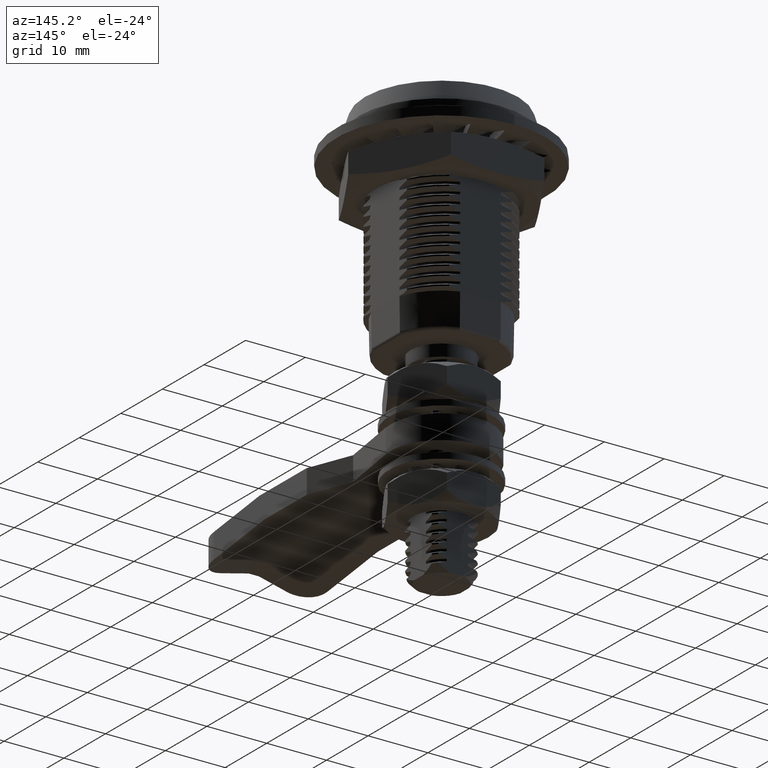
[diagram: clean part render]
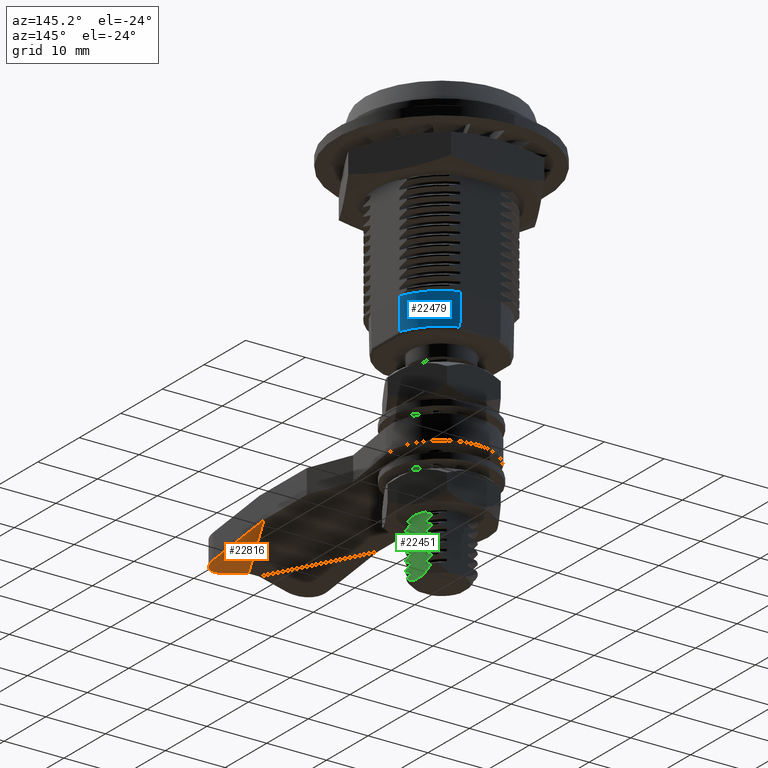
[diagram: same view with three faces highlighted in distinct colors, each labeled with its STEP entity id]
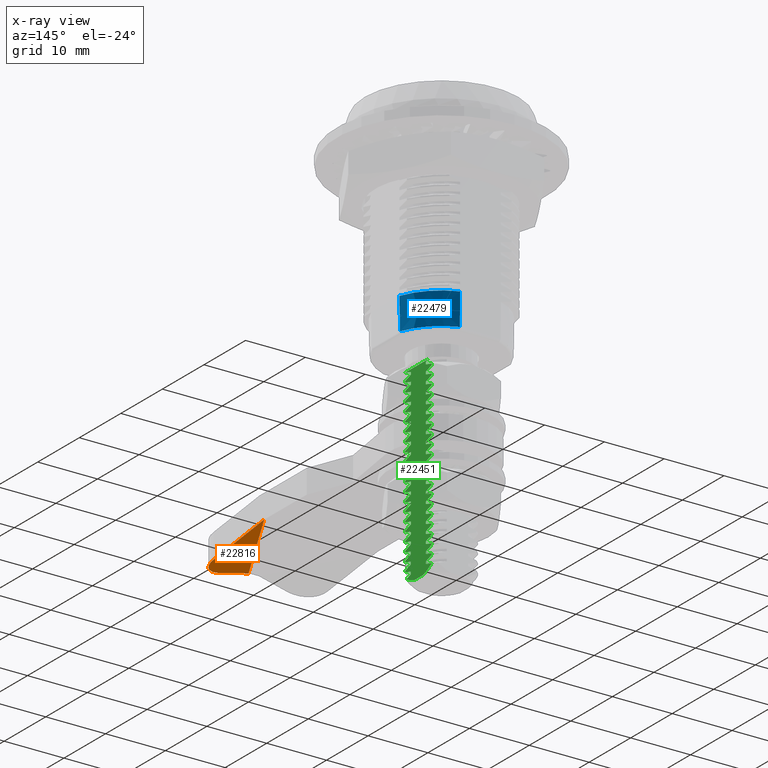
[diagram: x-ray of the same camera — body ghosted, the three highlighted faces saturated]
A machine part, auxiliary view with three faces highlighted in distinct colors.
The next image is the same camera in x-ray (body ghosted, the three faces saturated) — at least one of them is partly hidden behind the body in this view.
Their STEP definitions:

[orange] entity #22816 — the highlighted planar face has unit normal (-0.2367, 0.1262, -0.9633).
#185=ELLIPSE('',#24080,4.15221476986615,4.);
#471=PLANE('',#24079);
#2595=FACE_OUTER_BOUND('',#3884,.T.);
#3884=EDGE_LOOP('',(#20484,#20485,#20486,#20487));
#6738=LINE('',#188781,#8073);
#6747=LINE('',#188798,#8082);
#6757=LINE('',#188820,#8092);
#8073=VECTOR('',#27707,4.75687144678395);
#8082=VECTOR('',#27718,12.2654655866576);
#8092=VECTOR('',#27740,18.316337274843);
#10305=VERTEX_POINT('',#188778);
#10306=VERTEX_POINT('',#188780);
#10312=VERTEX_POINT('',#188795);
#10313=VERTEX_POINT('',#188797);
#13724=EDGE_CURVE('',#10305,#10306,#6738,.T.);
#13733=EDGE_CURVE('',#10312,#10313,#6747,.T.);
#13746=EDGE_CURVE('',#10313,#10305,#6757,.T.);
#13757=EDGE_CURVE('',#10306,#10312,#185,.T.);
#20484=ORIENTED_EDGE('',*,*,#13746,.F.);
#20485=ORIENTED_EDGE('',*,*,#13733,.F.);
#20486=ORIENTED_EDGE('',*,*,#13757,.F.);
#20487=ORIENTED_EDGE('',*,*,#13724,.F.);
#22816=ADVANCED_FACE('',(#2595),#471,.T.);
#24079=AXIS2_PLACEMENT_3D('',#188840,#27758,#27759);
#24080=AXIS2_PLACEMENT_3D('',#188841,#27760,#27761);
#27707=DIRECTION('',(0.97111155659738,-2.02153201802623E-14,-0.238625951319243));
#27718=DIRECTION('',(-1.22961396213774E-15,0.991521600143593,0.129941973390771));
#27740=DIRECTION('',(-0.470588235294113,-0.882352941176473,0.));
#27758=DIRECTION('center_axis',(-0.236716610026833,0.126248858680976,-0.963341306193789));
#27759=DIRECTION('ref_axis',(-0.97111155659738,0.,0.238625951319243));
#27760=DIRECTION('center_axis',(0.236716610026833,-0.126248858680976,0.963341306193789));
#27761=DIRECTION('ref_axis',(0.850007034876875,-0.453337085267661,-0.268278824697077));
#188778=CARTESIAN_POINT('',(169.88054716478,159.85,-52.5));
#188780=CARTESIAN_POINT('',(174.5,159.85,-53.6351129742922));
#188781=CARTESIAN_POINT('',(169.537797227046,159.85,-52.4157779254086));
#188795=CARTESIAN_POINT('',(178.5,163.850000001032,-54.093798802758));
#188797=CARTESIAN_POINT('',(178.5,176.011474066038,-52.5));
#188798=CARTESIAN_POINT('',(178.5,160.638246232821,-54.5147090711335));
#188820=CARTESIAN_POINT('',(172.564439834171,164.882298755108,-52.5));
#188840=CARTESIAN_POINT('Origin',(169.553133559893,160.354995434724,-52.3533652247751));
#188841=CARTESIAN_POINT('Origin',(174.5,163.85,-53.1109005985983));

[blue] entity #22479 — the highlighted conical surface has half-angle 1 deg.
#42=(
BOUNDED_CURVE()
B_SPLINE_CURVE(2,(#143242,#143243,#143244),.UNSPECIFIED.,.F.,.F.)
B_SPLINE_CURVE_WITH_KNOTS((3,3),(0.0997312465467633,0.630685877170918),
 .UNSPECIFIED.)
CURVE()
GEOMETRIC_REPRESENTATION_ITEM()
RATIONAL_B_SPLINE_CURVE((0.999999997693948,0.999999992525226,0.999999997682857))
REPRESENTATION_ITEM('')
);
#43=(
BOUNDED_CURVE()
B_SPLINE_CURVE(2,(#143245,#143246,#143247),.UNSPECIFIED.,.F.,.F.)
B_SPLINE_CURVE_WITH_KNOTS((3,3),(0.10030158032062,0.631256211709047),
 .UNSPECIFIED.)
CURVE()
GEOMETRIC_REPRESENTATION_ITEM()
RATIONAL_B_SPLINE_CURVE((1.,1.,1.))
REPRESENTATION_ITEM('')
);
#271=CONICAL_SURFACE('',#23772,10.,0.0174532925199433);
#832=CIRCLE('',#23761,9.90733583943669);
#836=CIRCLE('',#23773,10.);
#2258=FACE_OUTER_BOUND('',#3541,.T.);
#3541=EDGE_LOOP('',(#18998,#18999,#19000,#19001));
#8774=VERTEX_POINT('',#45349);
#9134=VERTEX_POINT('',#48189);
#10152=VERTEX_POINT('',#143174);
#10153=VERTEX_POINT('',#143191);
#13250=EDGE_CURVE('',#10152,#10153,#832,.T.);
#13264=EDGE_CURVE('',#8774,#10152,#42,.T.);
#13265=EDGE_CURVE('',#10153,#9134,#43,.T.);
#13266=EDGE_CURVE('',#9134,#8774,#836,.T.);
#18998=ORIENTED_EDGE('',*,*,#13264,.T.);
#18999=ORIENTED_EDGE('',*,*,#13250,.T.);
#19000=ORIENTED_EDGE('',*,*,#13265,.T.);
#19001=ORIENTED_EDGE('',*,*,#13266,.T.);
#22479=ADVANCED_FACE('',(#2258),#271,.T.);
#23761=AXIS2_PLACEMENT_3D('',#143208,#27002,#27003);
#23772=AXIS2_PLACEMENT_3D('',#143241,#27028,#27029);
#23773=AXIS2_PLACEMENT_3D('',#143248,#27030,#27031);
#27002=DIRECTION('center_axis',(0.,0.,1.));
#27003=DIRECTION('ref_axis',(-1.,0.,0.));
#27028=DIRECTION('center_axis',(0.,0.,1.));
#27029=DIRECTION('ref_axis',(-1.,0.,0.));
#27030=DIRECTION('center_axis',(0.,0.,-1.));
#27031=DIRECTION('ref_axis',(-1.,0.,0.));
#45349=CARTESIAN_POINT('',(178.4,208.411744421846,-30.7));
#48189=CARTESIAN_POINT('',(172.411744421846,214.4,-30.7));
#143174=CARTESIAN_POINT('',(178.307335839437,208.395409107504,-36.0087262032187));
#143191=CARTESIAN_POINT('',(172.395409107504,214.307335839437,-36.0087262032187));
#143208=CARTESIAN_POINT('Origin',(169.,205.,-36.0087262032187));
#143241=CARTESIAN_POINT('Origin',(169.,205.,-30.7));
#143242=CARTESIAN_POINT('Ctrl Pts',(178.4,208.411744421852,-30.6999999999999));
#143243=CARTESIAN_POINT('Ctrl Pts',(178.353556766301,208.403576770132,-33.3607310766297));
#143244=CARTESIAN_POINT('Ctrl Pts',(178.307335839432,208.395409107498,-36.0087262034832));
#143245=CARTESIAN_POINT('Ctrl Pts',(172.395409107502,214.307335839437,-36.0087262032207));
#143246=CARTESIAN_POINT('Ctrl Pts',(172.403576767006,214.353556748563,-33.3607320928123));
#143247=CARTESIAN_POINT('Ctrl Pts',(172.411744421849,214.4,-30.6999999999997));
#143248=CARTESIAN_POINT('Origin',(169.,205.,-30.7));

[green] entity #22451 — the highlighted planar face has unit normal (1, 0, 0).
#31=(
BOUNDED_CURVE()
B_SPLINE_CURVE(2,(#95852,#95853,#95854),.UNSPECIFIED.,.F.,.F.)
B_SPLINE_CURVE_WITH_KNOTS((3,3),(2.97094401015002,4.19286202785436),
 .UNSPECIFIED.)
CURVE()
GEOMETRIC_REPRESENTATION_ITEM()
RATIONAL_B_SPLINE_CURVE((4.61581920903963,5.04083865314853,5.20382165605166))
REPRESENTATION_ITEM('')
);
#33=(
BOUNDED_CURVE()
B_SPLINE_CURVE(2,(#118405,#118406,#118407),.UNSPECIFIED.,.F.,.F.)
B_SPLINE_CURVE_WITH_KNOTS((3,3),(5.71289387464999,6.79202172162961),
 .UNSPECIFIED.)
CURVE()
GEOMETRIC_REPRESENTATION_ITEM()
RATIONAL_B_SPLINE_CURVE((5.20382165605166,5.05988442420074,4.71157427024962))
REPRESENTATION_ITEM('')
);
#443=PLANE('',#23718);
#2230=FACE_OUTER_BOUND('',#3508,.T.);
#3508=EDGE_LOOP('',(#18531,#18532,#18533,#18534,#18535,#18536,#18537,#18538,
#18539,#18540,#18541,#18542,#18543,#18544,#18545,#18546,#18547,#18548,#18549,
#18550,#18551,#18552,#18553,#18554,#18555,#18556,#18557,#18558,#18559,#18560,
#18561,#18562,#18563,#18564,#18565,#18566,#18567,#18568,#18569,#18570,#18571,
#18572,#18573,#18574,#18575,#18576,#18577,#18578,#18579,#18580,#18581,#18582,
#18583,#18584,#18585,#18586,#18587,#18588,#18589,#18590,#18591,#18592,#18593,
#18594,#18595,#18596,#18597,#18598,#18599,#18600,#18601,#18602,#18603,#18604,
#18605,#18606,#18607,#18608,#18609,#18610,#18611,#18612,#18613,#18614,#18615,
#18616,#18617,#18618,#18619,#18620,#18621,#18622,#18623,#18624,#18625,#18626,
#18627,#18628,#18629,#18630,#18631,#18632,#18633,#18634,#18635,#18636,#18637,
#18638,#18639,#18640,#18641,#18642,#18643,#18644,#18645,#18646,#18647,#18648,
#18649,#18650,#18651,#18652,#18653,#18654,#18655,#18656,#18657,#18658,#18659,
#18660,#18661,#18662,#18663,#18664,#18665,#18666,#18667,#18668,#18669,#18670,
#18671,#18672,#18673,#18674,#18675,#18676,#18677,#18678,#18679,#18680,#18681,
#18682,#18683,#18684,#18685,#18686,#18687,#18688,#18689,#18690,#18691,#18692,
#18693,#18694,#18695,#18696,#18697,#18698,#18699,#18700,#18701,#18702));
#4781=B_SPLINE_CURVE_WITH_KNOTS('',3,(#73874,#73875,#73876,#73877,#73878,
#73879),.UNSPECIFIED.,.F.,.F.,(4,2,4),(9.99999938902014E-7,0.071889007584264,
0.143784780522941),.UNSPECIFIED.);
#4785=B_SPLINE_CURVE_WITH_KNOTS('',3,(#74423,#74424,#74425,#74426,#74427,
#74428),.UNSPECIFIED.,.F.,.F.,(4,2,4),(9.99999931764185E-7,0.0736486809972706,
0.1473208580429),.UNSPECIFIED.);
#4789=B_SPLINE_CURVE_WITH_KNOTS('',3,(#74972,#74973,#74974,#74975,#74976,
#74977),.UNSPECIFIED.,.F.,.F.,(4,2,4),(9.99999943158414E-7,0.0718890075842043,
0.143784780522723),.UNSPECIFIED.);
#4793=B_SPLINE_CURVE_WITH_KNOTS('',3,(#75521,#75522,#75523,#75524,#75525,
#75526),.UNSPECIFIED.,.F.,.F.,(4,2,4),(9.99999931009968E-7,0.0736491810770094,
0.147320858042681),.UNSPECIFIED.);
#4797=B_SPLINE_CURVE_WITH_KNOTS('',3,(#76070,#76071,#76072,#76073,#76074,
#76075),.UNSPECIFIED.,.F.,.F.,(4,2,4),(9.99999943779338E-7,0.0718890075836037,
0.143784780521738),.UNSPECIFIED.);
#4801=B_SPLINE_CURVE_WITH_KNOTS('',3,(#76619,#76620,#76621,#76622,#76623,
#76624),.UNSPECIFIED.,.F.,.F.,(4,2,4),(9.99999927506596E-7,0.0736491807753947,
0.147320858043309),.UNSPECIFIED.);
#4805=B_SPLINE_CURVE_WITH_KNOTS('',3,(#77168,#77169,#77170,#77171,#77172,
#77173),.UNSPECIFIED.,.F.,.F.,(4,2,4),(9.99999943514696E-7,0.0718890078281563,
0.143784780522148),.UNSPECIFIED.);
#4809=B_SPLINE_CURVE_WITH_KNOTS('',3,(#77717,#77718,#77719,#77720,#77721,
#77722),.UNSPECIFIED.,.F.,.F.,(4,2,4),(9.99999923579573E-7,0.0736491810771096,
0.147320858043228),.UNSPECIFIED.);
#4813=B_SPLINE_CURVE_WITH_KNOTS('',3,(#78266,#78267,#78268,#78269,#78270,
#78271),.UNSPECIFIED.,.F.,.F.,(4,2,4),(9.99999947006672E-7,0.0718885075604823,
0.143784780522291),.UNSPECIFIED.);
#4817=B_SPLINE_CURVE_WITH_KNOTS('',3,(#78815,#78816,#78817,#78818,#78819,
#78820),.UNSPECIFIED.,.F.,.F.,(4,2,4),(9.99999930507028E-7,0.073649181076981,
0.147320858042632),.UNSPECIFIED.);
#4821=B_SPLINE_CURVE_WITH_KNOTS('',3,(#79364,#79365,#79366,#79367,#79368,
#79369),.UNSPECIFIED.,.F.,.F.,(4,2,4),(9.99999941248163E-7,0.0718890075842089,
0.143784780523034),.UNSPECIFIED.);
#4825=B_SPLINE_CURVE_WITH_KNOTS('',3,(#79913,#79914,#79915,#79916,#79917,
#79918),.UNSPECIFIED.,.F.,.F.,(4,2,4),(9.99999933948683E-7,0.0736481806214189,
0.147320858042453),.UNSPECIFIED.);
#4829=B_SPLINE_CURVE_WITH_KNOTS('',3,(#80462,#80463,#80464,#80465,#80466,
#80467),.UNSPECIFIED.,.F.,.F.,(4,2,4),(9.99999943158423E-7,0.0718890075841351,
0.143784780522875),.UNSPECIFIED.);
#4833=B_SPLINE_CURVE_WITH_KNOTS('',3,(#81011,#81012,#81013,#81014,#81015,
#81016),.UNSPECIFIED.,.F.,.F.,(4,2,4),(9.99999938110434E-7,0.0736486809973436,
0.147320858042859),.UNSPECIFIED.);
#4837=B_SPLINE_CURVE_WITH_KNOTS('',3,(#81560,#81561,#81562,#81563,#81564,
#81565),.UNSPECIFIED.,.F.,.F.,(4,2,4),(9.99999938086026E-7,0.0718895071615702,
0.143784780525751),.UNSPECIFIED.);
#4841=B_SPLINE_CURVE_WITH_KNOTS('',3,(#82109,#82110,#82111,#82112,#82113,
#82114),.UNSPECIFIED.,.F.,.F.,(4,2,4),(9.99999921542103E-7,0.0736486807018007,
0.147320858044042),.UNSPECIFIED.);
#4845=B_SPLINE_CURVE_WITH_KNOTS('',3,(#82658,#82659,#82660,#82661,#82662,
#82663),.UNSPECIFIED.,.F.,.F.,(4,2,4),(9.99999941674071E-7,0.0718890075841652,
0.143784780522711),.UNSPECIFIED.);
#4849=B_SPLINE_CURVE_WITH_KNOTS('',3,(#83207,#83208,#83209,#83210,#83211,
#83212),.UNSPECIFIED.,.F.,.F.,(4,2,4),(9.99999931009883E-7,0.0736486809973919,
0.147320858042974),.UNSPECIFIED.);
#4853=B_SPLINE_CURVE_WITH_KNOTS('',3,(#83756,#83757,#83758,#83759,#83760,
#83761),.UNSPECIFIED.,.F.,.F.,(4,2,4),(9.99999950402566E-7,0.0718885075607838,
0.143784780523012),.UNSPECIFIED.);
#4857=B_SPLINE_CURVE_WITH_KNOTS('',3,(#84305,#84306,#84307,#84308,#84309,
#84310),.UNSPECIFIED.,.F.,.F.,(4,2,4),(9.99999925703719E-7,0.0736486803992055,
0.147320858042804),.UNSPECIFIED.);
#4861=B_SPLINE_CURVE_WITH_KNOTS('',3,(#84854,#84855,#84856,#84857,#84858,
#84859),.UNSPECIFIED.,.F.,.F.,(4,2,4),(9.99999943828045E-7,0.0718890078283237,
0.14378478052258),.UNSPECIFIED.);
#4865=B_SPLINE_CURVE_WITH_KNOTS('',3,(#85403,#85404,#85405,#85406,#85407,
#85408),.UNSPECIFIED.,.F.,.F.,(4,2,4),(9.99999914501938E-7,0.073648680701181,
0.147320858042685),.UNSPECIFIED.);
#4869=B_SPLINE_CURVE_WITH_KNOTS('',3,(#85952,#85953,#85954,#85955,#85956,
#85957),.UNSPECIFIED.,.F.,.F.,(4,2,4),(9.99999943715294E-7,0.0718895071601716,
0.14378478052279),.UNSPECIFIED.);
#4873=B_SPLINE_CURVE_WITH_KNOTS('',3,(#86501,#86502,#86503,#86504,#86505,
#86506),.UNSPECIFIED.,.F.,.F.,(4,2,4),(9.99999917631836E-7,0.0736491810770228,
0.147320858042897),.UNSPECIFIED.);
#4877=B_SPLINE_CURVE_WITH_KNOTS('',3,(#87050,#87051,#87052,#87053,#87054,
#87055),.UNSPECIFIED.,.F.,.F.,(4,2,4),(9.99999936856744E-7,0.0718895071587926,
0.143784780520263),.UNSPECIFIED.);
#4881=B_SPLINE_CURVE_WITH_KNOTS('',3,(#87599,#87600,#87601,#87602,#87603,
#87604),.UNSPECIFIED.,.F.,.F.,(4,2,4),(9.9999993534467E-7,0.0736486809972104,
0.147320858042548),.UNSPECIFIED.);
#4885=B_SPLINE_CURVE_WITH_KNOTS('',3,(#88148,#88149,#88150,#88151,#88152,
#88153),.UNSPECIFIED.,.F.,.F.,(4,2,4),(9.99999941117187E-7,0.0718895071597936,
0.14378478052232),.UNSPECIFIED.);
#4889=B_SPLINE_CURVE_WITH_KNOTS('',3,(#88697,#88698,#88699,#88700,#88701,
#88702),.UNSPECIFIED.,.F.,.F.,(4,2,4),(9.99999931261318E-7,0.0736491810770693,
0.147320858043087),.UNSPECIFIED.);
#4893=B_SPLINE_CURVE_WITH_KNOTS('',3,(#89246,#89247,#89248,#89249,#89250,
#89251),.UNSPECIFIED.,.F.,.F.,(4,2,4),(9.99999936689746E-7,0.0718895071602765,
0.143784780523087),.UNSPECIFIED.);
#4897=B_SPLINE_CURVE_WITH_KNOTS('',3,(#89795,#89796,#89797,#89798,#89799,
#89800),.UNSPECIFIED.,.F.,.F.,(4,2,4),(9.99999928356839E-7,0.0736486809974734,
0.147320858043411),.UNSPECIFIED.);
#4901=B_SPLINE_CURVE_WITH_KNOTS('',3,(#90344,#90345,#90346,#90347,#90348,
#90349),.UNSPECIFIED.,.F.,.F.,(4,2,4),(9.99999947229634E-7,0.0718890075847245,
0.143784780523931),.UNSPECIFIED.);
#4905=B_SPLINE_CURVE_WITH_KNOTS('',3,(#90893,#90894,#90895,#90896,#90897,
#90898),.UNSPECIFIED.,.F.,.F.,(4,2,4),(9.99999954349238E-7,0.073648180622011,
0.147320858043589),.UNSPECIFIED.);
#4909=B_SPLINE_CURVE_WITH_KNOTS('',3,(#91442,#91443,#91444,#91445,#91446,
#91447),.UNSPECIFIED.,.F.,.F.,(4,2,4),(9.9999994195249E-7,0.0718890075839587,
0.143784780522264),.UNSPECIFIED.);
#4913=B_SPLINE_CURVE_WITH_KNOTS('',3,(#91991,#91992,#91993,#91994,#91995,
#91996),.UNSPECIFIED.,.F.,.F.,(4,2,4),(9.99999899840554E-7,0.0736486803991823,
0.14732085804266),.UNSPECIFIED.);
#4917=B_SPLINE_CURVE_WITH_KNOTS('',3,(#92540,#92541,#92542,#92543,#92544,
#92545),.UNSPECIFIED.,.F.,.F.,(4,2,4),(9.99999945604647E-7,0.0718890078267678,
0.143784780519355),.UNSPECIFIED.);
#4921=B_SPLINE_CURVE_WITH_KNOTS('',3,(#93089,#93090,#93091,#93092,#93093,
#93094),.UNSPECIFIED.,.F.,.F.,(4,2,4),(9.99999906404008E-7,0.0736486807012789,
0.147320858043175),.UNSPECIFIED.);
#4925=B_SPLINE_CURVE_WITH_KNOTS('',3,(#93638,#93639,#93640,#93641,#93642,
#93643),.UNSPECIFIED.,.F.,.F.,(4,2,4),(9.99999948421233E-7,0.0718890071366596,
0.143784780523098),.UNSPECIFIED.);
#4929=B_SPLINE_CURVE_WITH_KNOTS('',3,(#94187,#94188,#94189,#94190,#94191,
#94192),.UNSPECIFIED.,.F.,.F.,(4,2,4),(9.99999931764188E-7,0.0736481806215927,
0.147320858042754),.UNSPECIFIED.);
#4933=B_SPLINE_CURVE_WITH_KNOTS('',3,(#94736,#94737,#94738,#94739,#94740,
#94741),.UNSPECIFIED.,.F.,.F.,(4,2,4),(9.99999944212234E-7,0.0718890075839398,
0.143784780522568),.UNSPECIFIED.);
#4937=B_SPLINE_CURVE_WITH_KNOTS('',3,(#95285,#95286,#95287,#95288,#95289,
#95290),.UNSPECIFIED.,.F.,.F.,(4,2,4),(9.9999990324793E-7,0.0736486807013122,
0.147320858043112),.UNSPECIFIED.);
#4941=B_SPLINE_CURVE_WITH_KNOTS('',3,(#95834,#95835,#95836,#95837,#95838,
#95839),.UNSPECIFIED.,.F.,.F.,(4,2,4),(9.99999943882405E-7,0.0718885075600655,
0.143784780521828),.UNSPECIFIED.);
#4946=B_SPLINE_CURVE_WITH_KNOTS('',3,(#96450,#96451,#96452,#96453,#96454,
#96455),.UNSPECIFIED.,.F.,.F.,(4,2,4),(9.99999929210735E-7,0.0736486810156163,
0.147320858041969),.UNSPECIFIED.);
#4950=B_SPLINE_CURVE_WITH_KNOTS('',3,(#96999,#97000,#97001,#97002,#97003,
#97004),.UNSPECIFIED.,.F.,.F.,(4,2,4),(9.99999955988678E-7,0.071888507587376,
0.143784780522702),.UNSPECIFIED.);
#4954=B_SPLINE_CURVE_WITH_KNOTS('',3,(#97548,#97549,#97550,#97551,#97552,
#97553),.UNSPECIFIED.,.F.,.F.,(4,2,4),(9.99999932267117E-7,0.073648180640418,
0.147320858043204),.UNSPECIFIED.);
#4958=B_SPLINE_CURVE_WITH_KNOTS('',3,(#98097,#98098,#98099,#98100,#98101,
#98102),.UNSPECIFIED.,.F.,.F.,(4,2,4),(9.99999946628025E-7,0.0718885075881263,
0.143784780524437),.UNSPECIFIED.);
#4962=B_SPLINE_CURVE_WITH_KNOTS('',3,(#98646,#98647,#98648,#98649,#98650,
#98651),.UNSPECIFIED.,.F.,.F.,(4,2,4),(9.99999928859695E-7,0.073649181095928,
0.147320858043328),.UNSPECIFIED.);
#4966=B_SPLINE_CURVE_WITH_KNOTS('',3,(#99195,#99196,#99197,#99198,#99199,
#99200),.UNSPECIFIED.,.F.,.F.,(4,2,4),(9.99999944490813E-7,0.0718890078548824,
0.143784780522235),.UNSPECIFIED.);
#4970=B_SPLINE_CURVE_WITH_KNOTS('',3,(#99744,#99745,#99746,#99747,#99748,
#99749),.UNSPECIFIED.,.F.,.F.,(4,2,4),(9.99999925200958E-7,0.0736491807936671,
0.147320858042413),.UNSPECIFIED.);
#4974=B_SPLINE_CURVE_WITH_KNOTS('',3,(#100293,#100294,#100295,#100296,#100297,
#100298),.UNSPECIFIED.,.F.,.F.,(4,2,4),(9.99999943687453E-7,0.0718890076108423,
0.143784780522865),.UNSPECIFIED.);
#4978=B_SPLINE_CURVE_WITH_KNOTS('',3,(#100842,#100843,#100844,#100845,#100846,
#100847),.UNSPECIFIED.,.F.,.F.,(4,2,4),(9.99999937607528E-7,0.0736486810161992,
0.147320858043137),.UNSPECIFIED.);
#4982=B_SPLINE_CURVE_WITH_KNOTS('',3,(#101391,#101392,#101393,#101394,#101395,
#101396),.UNSPECIFIED.,.F.,.F.,(4,2,4),(9.99999940003327E-7,0.0718895071868755,
0.14378478052295),.UNSPECIFIED.);
#4986=B_SPLINE_CURVE_WITH_KNOTS('',3,(#101940,#101941,#101942,#101943,#101944,
#101945),.UNSPECIFIED.,.F.,.F.,(4,2,4),(9.99999928867928E-7,0.073649181095067,
0.147320858041089),.UNSPECIFIED.);
#4990=B_SPLINE_CURVE_WITH_KNOTS('',3,(#102489,#102490,#102491,#102492,#102493,
#102494),.UNSPECIFIED.,.F.,.F.,(4,2,4),(9.99999945047715E-7,0.0718890071632994,
0.143784780522796),.UNSPECIFIED.);
#4994=B_SPLINE_CURVE_WITH_KNOTS('',3,(#103038,#103039,#103040,#103041,#103042,
#103043),.UNSPECIFIED.,.F.,.F.,(4,2,4),(9.99999926822123E-7,0.0736491810945994,
0.147320858040234),.UNSPECIFIED.);
#4998=B_SPLINE_CURVE_WITH_KNOTS('',3,(#103587,#103588,#103589,#103590,#103591,
#103592),.UNSPECIFIED.,.F.,.F.,(4,2,4),(9.9999994851732E-7,0.0718885075871587,
0.143784780522549),.UNSPECIFIED.);
#5002=B_SPLINE_CURVE_WITH_KNOTS('',3,(#104136,#104137,#104138,#104139,#104140,
#104141),.UNSPECIFIED.,.F.,.F.,(4,2,4),(9.99999924195167E-7,0.0736491810958842,
0.147320858043133),.UNSPECIFIED.);
#5006=B_SPLINE_CURVE_WITH_KNOTS('',3,(#104685,#104686,#104687,#104688,#104689,
#104690),.UNSPECIFIED.,.F.,.F.,(4,2,4),(9.99999937465103E-7,0.0718890076107663,
0.143784780522773),.UNSPECIFIED.);
#5010=B_SPLINE_CURVE_WITH_KNOTS('',3,(#105234,#105235,#105236,#105237,#105238,
#105239),.UNSPECIFIED.,.F.,.F.,(4,2,4),(9.99999926319366E-7,0.0736491810958314,
0.147320858042763),.UNSPECIFIED.);
#5014=B_SPLINE_CURVE_WITH_KNOTS('',3,(#105783,#105784,#105785,#105786,#105787,
#105788),.UNSPECIFIED.,.F.,.F.,(4,2,4),(9.9999993808608E-7,0.0718890076110697,
0.143784780523486),.UNSPECIFIED.);
#5018=B_SPLINE_CURVE_WITH_KNOTS('',3,(#106332,#106333,#106334,#106335,#106336,
#106337),.UNSPECIFIED.,.F.,.F.,(4,2,4),(9.99999924446624E-7,0.07364918109593,
0.14732085804332),.UNSPECIFIED.);
#5022=B_SPLINE_CURVE_WITH_KNOTS('',3,(#106881,#106882,#106883,#106884,#106885,
#106886),.UNSPECIFIED.,.F.,.F.,(4,2,4),(9.9999994903819E-7,0.0718895074309801,
0.143784780522655),.UNSPECIFIED.);
#5026=B_SPLINE_CURVE_WITH_KNOTS('',3,(#107430,#107431,#107432,#107433,#107434,
#107435),.UNSPECIFIED.,.F.,.F.,(4,2,4),(9.99999928278378E-7,0.0736491807929423,
0.147320858040964),.UNSPECIFIED.);
#5030=B_SPLINE_CURVE_WITH_KNOTS('',3,(#107979,#107980,#107981,#107982,#107983,
#107984),.UNSPECIFIED.,.F.,.F.,(4,2,4),(9.99999943500886E-7,0.0718890076110641,
0.143784780523441),.UNSPECIFIED.);
#5034=B_SPLINE_CURVE_WITH_KNOTS('',3,(#108528,#108529,#108530,#108531,#108532,
#108533),.UNSPECIFIED.,.F.,.F.,(4,2,4),(9.99999928608332E-7,0.0736486807201055,
0.147320858043024),.UNSPECIFIED.);
#5038=B_SPLINE_CURVE_WITH_KNOTS('',3,(#109077,#109078,#109079,#109080,#109081,
#109082),.UNSPECIFIED.,.F.,.F.,(4,2,4),(9.99999937314668E-7,0.0718890076109604,
0.143784780523293),.UNSPECIFIED.);
#5042=B_SPLINE_CURVE_WITH_KNOTS('',3,(#109626,#109627,#109628,#109629,#109630,
#109631),.UNSPECIFIED.,.F.,.F.,(4,2,4),(9.99999927853931E-7,0.0736491810958586,
0.147320858043099),.UNSPECIFIED.);
#5046=B_SPLINE_CURVE_WITH_KNOTS('',3,(#110175,#110176,#110177,#110178,#110179,
#110180),.UNSPECIFIED.,.F.,.F.,(4,2,4),(9.99999949102204E-7,0.0718885075874251,
0.14378478052285),.UNSPECIFIED.);
#5050=B_SPLINE_CURVE_WITH_KNOTS('',3,(#110724,#110725,#110726,#110727,#110728,
#110729),.UNSPECIFIED.,.F.,.F.,(4,2,4),(9.99999929258044E-7,0.0736481806404562,
0.147320858043043),.UNSPECIFIED.);
#5054=B_SPLINE_CURVE_WITH_KNOTS('',3,(#111273,#111274,#111275,#111276,#111277,
#111278),.UNSPECIFIED.,.F.,.F.,(4,2,4),(9.99999943440921E-7,0.0718890076115391,
0.143784780524084),.UNSPECIFIED.);
#5058=B_SPLINE_CURVE_WITH_KNOTS('',3,(#111822,#111823,#111824,#111825,#111826,
#111827),.UNSPECIFIED.,.F.,.F.,(4,2,4),(9.99999928859715E-7,0.0736486807201342,
0.147320858043117),.UNSPECIFIED.);
#5062=B_SPLINE_CURVE_WITH_KNOTS('',3,(#112371,#112372,#112373,#112374,#112375,
#112376),.UNSPECIFIED.,.F.,.F.,(4,2,4),(9.9999993718666E-7,0.0718895071866266,
0.143784780522805),.UNSPECIFIED.);
#5066=B_SPLINE_CURVE_WITH_KNOTS('',3,(#112920,#112921,#112922,#112923,#112924,
#112925),.UNSPECIFIED.,.F.,.F.,(4,2,4),(9.9999993274387E-7,0.0736486810154878,
0.147320858041603),.UNSPECIFIED.);
#5070=B_SPLINE_CURVE_WITH_KNOTS('',3,(#113469,#113470,#113471,#113472,#113473,
#113474),.UNSPECIFIED.,.F.,.F.,(4,2,4),(9.99999948421217E-7,0.0718890076109378,
0.143784780523123),.UNSPECIFIED.);
#5074=B_SPLINE_CURVE_WITH_KNOTS('',3,(#114018,#114019,#114020,#114021,#114022,
#114023),.UNSPECIFIED.,.F.,.F.,(4,2,4),(9.99999935925883E-7,0.0736486810162078,
0.147320858043302),.UNSPECIFIED.);
#5078=B_SPLINE_CURVE_WITH_KNOTS('',3,(#114567,#114568,#114569,#114570,#114571,
#114572),.UNSPECIFIED.,.F.,.F.,(4,2,4),(9.99999948481219E-7,0.0718885078319239,
0.143784780523366),.UNSPECIFIED.);
#5082=B_SPLINE_CURVE_WITH_KNOTS('',3,(#115116,#115117,#115118,#115119,#115120,
#115121),.UNSPECIFIED.,.F.,.F.,(4,2,4),(9.99999929449243E-7,0.0736486804180391,
0.147320858042736),.UNSPECIFIED.);
#5086=B_SPLINE_CURVE_WITH_KNOTS('',3,(#115665,#115666,#115667,#115668,#115669,
#115670),.UNSPECIFIED.,.F.,.F.,(4,2,4),(9.99999940838699E-7,0.0718895071868526,
0.14378478052321),.UNSPECIFIED.);
#5090=B_SPLINE_CURVE_WITH_KNOTS('',3,(#116214,#116215,#116216,#116217,#116218,
#116219),.UNSPECIFIED.,.F.,.F.,(4,2,4),(9.99999922825362E-7,0.0736486807201366,
0.147320858043056),.UNSPECIFIED.);
#5094=B_SPLINE_CURVE_WITH_KNOTS('',3,(#116763,#116764,#116765,#116766,#116767,
#116768),.UNSPECIFIED.,.F.,.F.,(4,2,4),(9.99999953343187E-7,0.0718885075888473,
0.143784780525817),.UNSPECIFIED.);
#5098=B_SPLINE_CURVE_WITH_KNOTS('',3,(#117312,#117313,#117314,#117315,#117316,
#117317),.UNSPECIFIED.,.F.,.F.,(4,2,4),(9.99999922799231E-7,0.073648680720223,
0.147320858043559),.UNSPECIFIED.);
#5102=B_SPLINE_CURVE_WITH_KNOTS('',3,(#117861,#117862,#117863,#117864,#117865,
#117866),.UNSPECIFIED.,.F.,.F.,(4,2,4),(9.99999943222465E-7,0.0718890076111067,
0.143784780523394),.UNSPECIFIED.);
#5106=B_SPLINE_CURVE_WITH_KNOTS('',3,(#118392,#118393,#118394,#118395,#118396,
#118397),.UNSPECIFIED.,.F.,.F.,(4,2,4),(9.99999944560412E-7,0.0581176644862998,
0.116244334857501),.UNSPECIFIED.);
#5279=B_SPLINE_CURVE_WITH_KNOTS('',3,(#142000,#142001,#142002,#142003,#142004,
#142005),.UNSPECIFIED.,.F.,.F.,(4,2,4),(9.99999975670214E-7,0.0321150584963738,
0.0642301452483293),.UNSPECIFIED.);
#5282=B_SPLINE_CURVE_WITH_KNOTS('',3,(#142490,#142491,#142492,#142493,#142494,
#142495),.UNSPECIFIED.,.F.,.F.,(4,2,4),(9.9999994421227E-7,0.071889007611098,
0.143784780523093),.UNSPECIFIED.);
#6366=LINE('',#73335,#7701);
#6368=LINE('',#73909,#7703);
#6370=LINE('',#74433,#7705);
#6372=LINE('',#75007,#7707);
#6374=LINE('',#75531,#7709);
#6376=LINE('',#76105,#7711);
#6378=LINE('',#76629,#7713);
#6380=LINE('',#77203,#7715);
#6382=LINE('',#77727,#7717);
#6384=LINE('',#78301,#7719);
#6386=LINE('',#78825,#7721);
#6388=LINE('',#79399,#7723);
#6390=LINE('',#79923,#7725);
#6392=LINE('',#80497,#7727);
#6394=LINE('',#81021,#7729);
#6396=LINE('',#81595,#7731);
#6398=LINE('',#82119,#7733);
#6400=LINE('',#82693,#7735);
#6402=LINE('',#83217,#7737);
#6404=LINE('',#83791,#7739);
#6406=LINE('',#84315,#7741);
#6408=LINE('',#84889,#7743);
#6410=LINE('',#85413,#7745);
#6412=LINE('',#85987,#7747);
#6414=LINE('',#86511,#7749);
#6416=LINE('',#87085,#7751);
#6418=LINE('',#87609,#7753);
#6420=LINE('',#88183,#7755);
#6422=LINE('',#88707,#7757);
#6424=LINE('',#89281,#7759);
#6426=LINE('',#89805,#7761);
#6428=LINE('',#90379,#7763);
#6430=LINE('',#90903,#7765);
#6432=LINE('',#91477,#7767);
#6434=LINE('',#92001,#7769);
#6436=LINE('',#92575,#7771);
#6438=LINE('',#93099,#7773);
#6440=LINE('',#93673,#7775);
#6442=LINE('',#94197,#7777);
#6444=LINE('',#94771,#7779);
#6446=LINE('',#95295,#7781);
#6448=LINE('',#95845,#7783);
#6450=LINE('',#95911,#7785);
#6452=LINE('',#96485,#7787);
#6454=LINE('',#97058,#7789);
#6456=LINE('',#97583,#7791);
#6458=LINE('',#98156,#7793);
#6460=LINE('',#98681,#7795);
#6462=LINE('',#99254,#7797);
#6464=LINE('',#99779,#7799);
#6466=LINE('',#100352,#7801);
#6468=LINE('',#100877,#7803);
#6470=LINE('',#101450,#7805);
#6472=LINE('',#101975,#7807);
#6474=LINE('',#102548,#7809);
#6476=LINE('',#103073,#7811);
#6478=LINE('',#103646,#7813);
#6480=LINE('',#104171,#7815);
#6482=LINE('',#104744,#7817);
#6484=LINE('',#105269,#7819);
#6486=LINE('',#105842,#7821);
#6488=LINE('',#106367,#7823);
#6490=LINE('',#106940,#7825);
#6492=LINE('',#107465,#7827);
#6494=LINE('',#108038,#7829);
#6496=LINE('',#108563,#7831);
#6498=LINE('',#109136,#7833);
#6500=LINE('',#109661,#7835);
#6502=LINE('',#110234,#7837);
#6504=LINE('',#110759,#7839);
#6506=LINE('',#111332,#7841);
#6508=LINE('',#111857,#7843);
#6510=LINE('',#112430,#7845);
#6512=LINE('',#112955,#7847);
#6514=LINE('',#113528,#7849);
#6516=LINE('',#114053,#7851);
#6518=LINE('',#114626,#7853);
#6520=LINE('',#115151,#7855);
#6522=LINE('',#115724,#7857);
#6524=LINE('',#116249,#7859);
#6526=LINE('',#116822,#7861);
#6528=LINE('',#117347,#7863);
#6530=LINE('',#117920,#7865);
#6534=LINE('',#118415,#7869);
#6623=LINE('',#142487,#7958);
#6624=LINE('',#142489,#7959);
#7701=VECTOR('',#26367,0.396022551520193);
#7703=VECTOR('',#26371,0.241663231038302);
#7705=VECTOR('',#26375,0.396022551520199);
#7707=VECTOR('',#26379,0.241663231036895);
#7709=VECTOR('',#26383,0.396022551523298);
#7711=VECTOR('',#26387,0.241663231032987);
#7713=VECTOR('',#26391,0.3960225515213);
#7715=VECTOR('',#26395,0.2416632310361);
#7717=VECTOR('',#26399,0.396022551520101);
#7719=VECTOR('',#26403,0.241663231036497);
#7721=VECTOR('',#26407,0.3960225515202);
#7723=VECTOR('',#26411,0.2416632310387);
#7725=VECTOR('',#26415,0.3960225515202);
#7727=VECTOR('',#26419,0.241663231036895);
#7729=VECTOR('',#26423,0.396022551516506);
#7731=VECTOR('',#26427,0.241663231032888);
#7733=VECTOR('',#26431,0.396022551520197);
#7735=VECTOR('',#26435,0.241663231036902);
#7737=VECTOR('',#26439,0.396022551520197);
#7739=VECTOR('',#26443,0.241663231036995);
#7741=VECTOR('',#26447,0.39602255152019);
#7743=VECTOR('',#26451,0.241663231038203);
#7745=VECTOR('',#26455,0.396022551520101);
#7747=VECTOR('',#26459,0.241663231036995);
#7749=VECTOR('',#26463,0.396022551524702);
#7751=VECTOR('',#26467,0.241663231038494);
#7753=VECTOR('',#26471,0.396022551520197);
#7755=VECTOR('',#26475,0.241663231036902);
#7757=VECTOR('',#26479,0.396022551520197);
#7759=VECTOR('',#26483,0.241663231036895);
#7761=VECTOR('',#26487,0.396022551517802);
#7763=VECTOR('',#26491,0.241663231033698);
#7765=VECTOR('',#26495,0.396022551521);
#7767=VECTOR('',#26499,0.241663231036895);
#7769=VECTOR('',#26503,0.396022551524908);
#7771=VECTOR('',#26507,0.241663231037386);
#7773=VECTOR('',#26511,0.396022551520204);
#7775=VECTOR('',#26515,0.241663231036995);
#7777=VECTOR('',#26519,0.396022551520204);
#7779=VECTOR('',#26523,0.241663231036895);
#7781=VECTOR('',#26527,0.396022551522002);
#7783=VECTOR('',#26533,0.0359870750239111);
#7785=VECTOR('',#26541,0.3960225515236);
#7787=VECTOR('',#26545,0.241663231037503);
#7789=VECTOR('',#26549,0.396022551520199);
#7791=VECTOR('',#26553,0.241663231033201);
#7793=VECTOR('',#26557,0.396022551521202);
#7795=VECTOR('',#26561,0.241663231036895);
#7797=VECTOR('',#26565,0.396022551519797);
#7799=VECTOR('',#26569,0.24166323103681);
#7801=VECTOR('',#26573,0.3960225515202);
#7803=VECTOR('',#26577,0.241663231036895);
#7805=VECTOR('',#26581,0.396022551523895);
#7807=VECTOR('',#26585,0.241663231037599);
#7809=VECTOR('',#26589,0.396022551526503);
#7811=VECTOR('',#26593,0.241663231036704);
#7813=VECTOR('',#26597,0.396022551520197);
#7815=VECTOR('',#26601,0.241663231036895);
#7817=VECTOR('',#26605,0.396022551519994);
#7819=VECTOR('',#26609,0.24166323103681);
#7821=VECTOR('',#26613,0.3960225515202);
#7823=VECTOR('',#26617,0.241663231036902);
#7825=VECTOR('',#26621,0.396022551523902);
#7827=VECTOR('',#26625,0.241663231036704);
#7829=VECTOR('',#26629,0.396022551520197);
#7831=VECTOR('',#26633,0.241663231037009);
#7833=VECTOR('',#26637,0.396022551520197);
#7835=VECTOR('',#26641,0.241663231036796);
#7837=VECTOR('',#26645,0.396022551519994);
#7839=VECTOR('',#26649,0.241663231033009);
#7841=VECTOR('',#26653,0.396022551520197);
#7843=VECTOR('',#26657,0.241663231036902);
#7845=VECTOR('',#26661,0.396022551523792);
#7847=VECTOR('',#26665,0.241663231037997);
#7849=VECTOR('',#26669,0.396022551520204);
#7851=VECTOR('',#26673,0.241663231032902);
#7853=VECTOR('',#26677,0.396022551520097);
#7855=VECTOR('',#26681,0.241663231036895);
#7857=VECTOR('',#26685,0.396022551521);
#7859=VECTOR('',#26689,0.241663231033606);
#7861=VECTOR('',#26693,0.396022551520211);
#7863=VECTOR('',#26697,0.241663231036796);
#7865=VECTOR('',#26701,0.3960225515236);
#7869=VECTOR('',#26713,2.17025344142201);
#7958=VECTOR('',#26898,5.601487491139);
#7959=VECTOR('',#26899,0.0359870750228026);
#9601=VERTEX_POINT('',#73284);
#9602=VERTEX_POINT('',#73334);
#9604=VERTEX_POINT('',#73842);
#9605=VERTEX_POINT('',#73881);
#9608=VERTEX_POINT('',#74367);
#9610=VERTEX_POINT('',#74432);
#9612=VERTEX_POINT('',#74940);
#9613=VERTEX_POINT('',#74979);
#9616=VERTEX_POINT('',#75465);
#9618=VERTEX_POINT('',#75530);
#9620=VERTEX_POINT('',#76038);
#9621=VERTEX_POINT('',#76077);
#9624=VERTEX_POINT('',#76563);
#9626=VERTEX_POINT('',#76628);
#9628=VERTEX_POINT('',#77136);
#9629=VERTEX_POINT('',#77175);
#9632=VERTEX_POINT('',#77661);
#9634=VERTEX_POINT('',#77726);
#9636=VERTEX_POINT('',#78234);
#9637=VERTEX_POINT('',#78273);
#9640=VERTEX_POINT('',#78759);
#9642=VERTEX_POINT('',#78824);
#9644=VERTEX_POINT('',#79332);
#9645=VERTEX_POINT('',#79371);
#9648=VERTEX_POINT('',#79857);
#9650=VERTEX_POINT('',#79922);
#9652=VERTEX_POINT('',#80430);
#9653=VERTEX_POINT('',#80469);
#9656=VERTEX_POINT('',#80955);
#9658=VERTEX_POINT('',#81020);
#9660=VERTEX_POINT('',#81528);
#9661=VERTEX_POINT('',#81567);
#9664=VERTEX_POINT('',#82053);
#9666=VERTEX_POINT('',#82118);
#9668=VERTEX_POINT('',#82626);
#9669=VERTEX_POINT('',#82665);
#9672=VERTEX_POINT('',#83151);
#9674=VERTEX_POINT('',#83216);
#9676=VERTEX_POINT('',#83724);
#9677=VERTEX_POINT('',#83763);
#9680=VERTEX_POINT('',#84249);
#9682=VERTEX_POINT('',#84314);
#9684=VERTEX_POINT('',#84822);
#9685=VERTEX_POINT('',#84861);
#9688=VERTEX_POINT('',#85347);
#9690=VERTEX_POINT('',#85412);
#9692=VERTEX_POINT('',#85920);
#9693=VERTEX_POINT('',#85959);
#9696=VERTEX_POINT('',#86445);
#9698=VERTEX_POINT('',#86510);
#9700=VERTEX_POINT('',#87018);
#9701=VERTEX_POINT('',#87057);
#9704=VERTEX_POINT('',#87543);
#9706=VERTEX_POINT('',#87608);
#9708=VERTEX_POINT('',#88116);
#9709=VERTEX_POINT('',#88155);
#9712=VERTEX_POINT('',#88641);
#9714=VERTEX_POINT('',#88706);
#9716=VERTEX_POINT('',#89214);
#9717=VERTEX_POINT('',#89253);
#9720=VERTEX_POINT('',#89739);
#9722=VERTEX_POINT('',#89804);
#9724=VERTEX_POINT('',#90312);
#9725=VERTEX_POINT('',#90351);
#9728=VERTEX_POINT('',#90837);
#9730=VERTEX_POINT('',#90902);
#9732=VERTEX_POINT('',#91410);
#9733=VERTEX_POINT('',#91449);
#9736=VERTEX_POINT('',#91935);
#9738=VERTEX_POINT('',#92000);
#9740=VERTEX_POINT('',#92508);
#9741=VERTEX_POINT('',#92547);
#9744=VERTEX_POINT('',#93033);
#9746=VERTEX_POINT('',#93098);
#9748=VERTEX_POINT('',#93606);
#9749=VERTEX_POINT('',#93645);
#9752=VERTEX_POINT('',#94131);
#9754=VERTEX_POINT('',#94196);
#9756=VERTEX_POINT('',#94704);
#9757=VERTEX_POINT('',#94743);
#9760=VERTEX_POINT('',#95229);
#9762=VERTEX_POINT('',#95294);
#9764=VERTEX_POINT('',#95802);
#9766=VERTEX_POINT('',#95842);
#9768=VERTEX_POINT('',#95851);
#9771=VERTEX_POINT('',#95860);
#9772=VERTEX_POINT('',#95910);
#9774=VERTEX_POINT('',#96424);
#9776=VERTEX_POINT('',#96459);
#9778=VERTEX_POINT('',#96949);
#9780=VERTEX_POINT('',#97008);
#9782=VERTEX_POINT('',#97522);
#9784=VERTEX_POINT('',#97557);
#9786=VERTEX_POINT('',#98047);
#9788=VERTEX_POINT('',#98106);
#9790=VERTEX_POINT('',#98620);
#9792=VERTEX_POINT('',#98655);
#9794=VERTEX_POINT('',#99145);
#9796=VERTEX_POINT('',#99204);
#9798=VERTEX_POINT('',#99718);
#9800=VERTEX_POINT('',#99753);
#9802=VERTEX_POINT('',#100243);
#9804=VERTEX_POINT('',#100302);
#9806=VERTEX_POINT('',#100816);
#9808=VERTEX_POINT('',#100851);
#9810=VERTEX_POINT('',#101341);
#9812=VERTEX_POINT('',#101400);
#9814=VERTEX_POINT('',#101914);
#9816=VERTEX_POINT('',#101949);
#9818=VERTEX_POINT('',#102439);
#9820=VERTEX_POINT('',#102498);
#9822=VERTEX_POINT('',#103012);
#9824=VERTEX_POINT('',#103047);
#9826=VERTEX_POINT('',#103537);
#9828=VERTEX_POINT('',#103596);
#9830=VERTEX_POINT('',#104110);
#9832=VERTEX_POINT('',#104145);
#9834=VERTEX_POINT('',#104635);
#9836=VERTEX_POINT('',#104694);
#9838=VERTEX_POINT('',#105208);
#9840=VERTEX_POINT('',#105243);
#9842=VERTEX_POINT('',#105733);
#9844=VERTEX_POINT('',#105792);
#9846=VERTEX_POINT('',#106306);
#9848=VERTEX_POINT('',#106341);
#9850=VERTEX_POINT('',#106831);
#9852=VERTEX_POINT('',#106890);
#9854=VERTEX_POINT('',#107404);
#9856=VERTEX_POINT('',#107439);
#9858=VERTEX_POINT('',#107929);
#9860=VERTEX_POINT('',#107988);
#9862=VERTEX_POINT('',#108502);
#9864=VERTEX_POINT('',#108537);
#9866=VERTEX_POINT('',#109027);
#9868=VERTEX_POINT('',#109086);
#9870=VERTEX_POINT('',#109600);
#9872=VERTEX_POINT('',#109635);
#9874=VERTEX_POINT('',#110125);
#9876=VERTEX_POINT('',#110184);
#9878=VERTEX_POINT('',#110698);
#9880=VERTEX_POINT('',#110733);
#9882=VERTEX_POINT('',#111223);
#9884=VERTEX_POINT('',#111282);
#9886=VERTEX_POINT('',#111796);
#9888=VERTEX_POINT('',#111831);
#9890=VERTEX_POINT('',#112321);
#9892=VERTEX_POINT('',#112380);
#9894=VERTEX_POINT('',#112894);
#9896=VERTEX_POINT('',#112929);
#9898=VERTEX_POINT('',#113419);
#9900=VERTEX_POINT('',#113478);
#9902=VERTEX_POINT('',#113992);
#9904=VERTEX_POINT('',#114027);
#9906=VERTEX_POINT('',#114517);
#9908=VERTEX_POINT('',#114576);
#9910=VERTEX_POINT('',#115090);
#9912=VERTEX_POINT('',#115125);
#9914=VERTEX_POINT('',#115615);
#9916=VERTEX_POINT('',#115674);
#9918=VERTEX_POINT('',#116188);
#9920=VERTEX_POINT('',#116223);
#9922=VERTEX_POINT('',#116713);
#9924=VERTEX_POINT('',#116772);
#9926=VERTEX_POINT('',#117286);
#9928=VERTEX_POINT('',#117321);
#9930=VERTEX_POINT('',#117811);
#9932=VERTEX_POINT('',#117870);
#9934=VERTEX_POINT('',#118385);
#9936=VERTEX_POINT('',#118403);
#10113=VERTEX_POINT('',#141965);
#10115=VERTEX_POINT('',#142486);
#10116=VERTEX_POINT('',#142488);
#12424=EDGE_CURVE('',#9601,#9602,#6366,.T.);
#12428=EDGE_CURVE('',#9604,#9602,#4781,.T.);
#12431=EDGE_CURVE('',#9605,#9604,#6368,.T.);
#12434=EDGE_CURVE('',#9608,#9605,#4785,.T.);
#12436=EDGE_CURVE('',#9608,#9610,#6370,.T.);
#12440=EDGE_CURVE('',#9612,#9610,#4789,.T.);
#12443=EDGE_CURVE('',#9613,#9612,#6372,.T.);
#12446=EDGE_CURVE('',#9616,#9613,#4793,.T.);
#12448=EDGE_CURVE('',#9616,#9618,#6374,.T.);
#12452=EDGE_CURVE('',#9620,#9618,#4797,.T.);
#12455=EDGE_CURVE('',#9621,#9620,#6376,.T.);
#12458=EDGE_CURVE('',#9624,#9621,#4801,.T.);
#12460=EDGE_CURVE('',#9624,#9626,#6378,.T.);
#12464=EDGE_CURVE('',#9628,#9626,#4805,.T.);
#12467=EDGE_CURVE('',#9629,#9628,#6380,.T.);
#12470=EDGE_CURVE('',#9632,#9629,#4809,.T.);
#12472=EDGE_CURVE('',#9632,#9634,#6382,.T.);
#12476=EDGE_CURVE('',#9636,#9634,#4813,.T.);
#12479=EDGE_CURVE('',#9637,#9636,#6384,.T.);
#12482=EDGE_CURVE('',#9640,#9637,#4817,.T.);
#12484=EDGE_CURVE('',#9640,#9642,#6386,.T.);
#12488=EDGE_CURVE('',#9644,#9642,#4821,.T.);
#12491=EDGE_CURVE('',#9645,#9644,#6388,.T.);
#12494=EDGE_CURVE('',#9648,#9645,#4825,.T.);
#12496=EDGE_CURVE('',#9648,#9650,#6390,.T.);
#12500=EDGE_CURVE('',#9652,#9650,#4829,.T.);
#12503=EDGE_CURVE('',#9653,#9652,#6392,.T.);
#12506=EDGE_CURVE('',#9656,#9653,#4833,.T.);
#12508=EDGE_CURVE('',#9656,#9658,#6394,.T.);
#12512=EDGE_CURVE('',#9660,#9658,#4837,.T.);
#12515=EDGE_CURVE('',#9661,#9660,#6396,.T.);
#12518=EDGE_CURVE('',#9664,#9661,#4841,.T.);
#12520=EDGE_CURVE('',#9664,#9666,#6398,.T.);
#12524=EDGE_CURVE('',#9668,#9666,#4845,.T.);
#12527=EDGE_CURVE('',#9669,#9668,#6400,.T.);
#12530=EDGE_CURVE('',#9672,#9669,#4849,.T.);
#12532=EDGE_CURVE('',#9672,#9674,#6402,.T.);
#12536=EDGE_CURVE('',#9676,#9674,#4853,.T.);
#12539=EDGE_CURVE('',#9677,#9676,#6404,.T.);
#12542=EDGE_CURVE('',#9680,#9677,#4857,.T.);
#12544=EDGE_CURVE('',#9680,#9682,#6406,.T.);
#12548=EDGE_CURVE('',#9684,#9682,#4861,.T.);
#12551=EDGE_CURVE('',#9685,#9684,#6408,.T.);
#12554=EDGE_CURVE('',#9688,#9685,#4865,.T.);
#12556=EDGE_CURVE('',#9688,#9690,#6410,.T.);
#12560=EDGE_CURVE('',#9692,#9690,#4869,.T.);
#12563=EDGE_CURVE('',#9693,#9692,#6412,.T.);
#12566=EDGE_CURVE('',#9696,#9693,#4873,.T.);
#12568=EDGE_CURVE('',#9696,#9698,#6414,.T.);
#12572=EDGE_CURVE('',#9700,#9698,#4877,.T.);
#12575=EDGE_CURVE('',#9701,#9700,#6416,.T.);
#12578=EDGE_CURVE('',#9704,#9701,#4881,.T.);
#12580=EDGE_CURVE('',#9704,#9706,#6418,.T.);
#12584=EDGE_CURVE('',#9708,#9706,#4885,.T.);
#12587=EDGE_CURVE('',#9709,#9708,#6420,.T.);
#12590=EDGE_CURVE('',#9712,#9709,#4889,.T.);
#12592=EDGE_CURVE('',#9712,#9714,#6422,.T.);
#12596=EDGE_CURVE('',#9716,#9714,#4893,.T.);
#12599=EDGE_CURVE('',#9717,#9716,#6424,.T.);
#12602=EDGE_CURVE('',#9720,#9717,#4897,.T.);
#12604=EDGE_CURVE('',#9720,#9722,#6426,.T.);
#12608=EDGE_CURVE('',#9724,#9722,#4901,.T.);
#12611=EDGE_CURVE('',#9725,#9724,#6428,.T.);
#12614=EDGE_CURVE('',#9728,#9725,#4905,.T.);
#12616=EDGE_CURVE('',#9728,#9730,#6430,.T.);
#12620=EDGE_CURVE('',#9732,#9730,#4909,.T.);
#12623=EDGE_CURVE('',#9733,#9732,#6432,.T.);
#12626=EDGE_CURVE('',#9736,#9733,#4913,.T.);
#12628=EDGE_CURVE('',#9736,#9738,#6434,.T.);
#12632=EDGE_CURVE('',#9740,#9738,#4917,.T.);
#12635=EDGE_CURVE('',#9741,#9740,#6436,.T.);
#12638=EDGE_CURVE('',#9744,#9741,#4921,.T.);
#12640=EDGE_CURVE('',#9744,#9746,#6438,.T.);
#12644=EDGE_CURVE('',#9748,#9746,#4925,.T.);
#12647=EDGE_CURVE('',#9749,#9748,#6440,.T.);
#12650=EDGE_CURVE('',#9752,#9749,#4929,.T.);
#12652=EDGE_CURVE('',#9752,#9754,#6442,.T.);
#12656=EDGE_CURVE('',#9756,#9754,#4933,.T.);
#12659=EDGE_CURVE('',#9757,#9756,#6444,.T.);
#12662=EDGE_CURVE('',#9760,#9757,#4937,.T.);
#12664=EDGE_CURVE('',#9760,#9762,#6446,.T.);
#12668=EDGE_CURVE('',#9764,#9762,#4941,.T.);
#12671=EDGE_CURVE('',#9766,#9764,#6448,.T.);
#12673=EDGE_CURVE('',#9766,#9768,#31,.T.);
#12677=EDGE_CURVE('',#9771,#9772,#6450,.T.);
#12681=EDGE_CURVE('',#9771,#9774,#4946,.T.);
#12684=EDGE_CURVE('',#9774,#9776,#6452,.T.);
#12687=EDGE_CURVE('',#9776,#9778,#4950,.T.);
#12690=EDGE_CURVE('',#9780,#9778,#6454,.T.);
#12693=EDGE_CURVE('',#9780,#9782,#4954,.T.);
#12696=EDGE_CURVE('',#9782,#9784,#6456,.T.);
#12699=EDGE_CURVE('',#9784,#9786,#4958,.T.);
#12702=EDGE_CURVE('',#9788,#9786,#6458,.T.);
#12705=EDGE_CURVE('',#9788,#9790,#4962,.T.);
#12708=EDGE_CURVE('',#9790,#9792,#6460,.T.);
#12711=EDGE_CURVE('',#9792,#9794,#4966,.T.);
#12714=EDGE_CURVE('',#9796,#9794,#6462,.T.);
#12717=EDGE_CURVE('',#9796,#9798,#4970,.T.);
#12720=EDGE_CURVE('',#9798,#9800,#6464,.T.);
#12723=EDGE_CURVE('',#9800,#9802,#4974,.T.);
#12726=EDGE_CURVE('',#9804,#9802,#6466,.T.);
#12729=EDGE_CURVE('',#9804,#9806,#4978,.T.);
#12732=EDGE_CURVE('',#9806,#9808,#6468,.T.);
#12735=EDGE_CURVE('',#9808,#9810,#4982,.T.);
#12738=EDGE_CURVE('',#9812,#9810,#6470,.T.);
#12741=EDGE_CURVE('',#9812,#9814,#4986,.T.);
#12744=EDGE_CURVE('',#9814,#9816,#6472,.T.);
#12747=EDGE_CURVE('',#9816,#9818,#4990,.T.);
#12750=EDGE_CURVE('',#9820,#9818,#6474,.T.);
#12753=EDGE_CURVE('',#9820,#9822,#4994,.T.);
#12756=EDGE_CURVE('',#9822,#9824,#6476,.T.);
#12759=EDGE_CURVE('',#9824,#9826,#4998,.T.);
#12762=EDGE_CURVE('',#9828,#9826,#6478,.T.);
#12765=EDGE_CURVE('',#9828,#9830,#5002,.T.);
#12768=EDGE_CURVE('',#9830,#9832,#6480,.T.);
#12771=EDGE_CURVE('',#9832,#9834,#5006,.T.);
#12774=EDGE_CURVE('',#9836,#9834,#6482,.T.);
#12777=EDGE_CURVE('',#9836,#9838,#5010,.T.);
#12780=EDGE_CURVE('',#9838,#9840,#6484,.T.);
#12783=EDGE_CURVE('',#9840,#9842,#5014,.T.);
#12786=EDGE_CURVE('',#9844,#9842,#6486,.T.);
#12789=EDGE_CURVE('',#9844,#9846,#5018,.T.);
#12792=EDGE_CURVE('',#9846,#9848,#6488,.T.);
#12795=EDGE_CURVE('',#9848,#9850,#5022,.T.);
#12798=EDGE_CURVE('',#9852,#9850,#6490,.T.);
#12801=EDGE_CURVE('',#9852,#9854,#5026,.T.);
#12804=EDGE_CURVE('',#9854,#9856,#6492,.T.);
#12807=EDGE_CURVE('',#9856,#9858,#5030,.T.);
#12810=EDGE_CURVE('',#9860,#9858,#6494,.T.);
#12813=EDGE_CURVE('',#9860,#9862,#5034,.T.);
#12816=EDGE_CURVE('',#9862,#9864,#6496,.T.);
#12819=EDGE_CURVE('',#9864,#9866,#5038,.T.);
#12822=EDGE_CURVE('',#9868,#9866,#6498,.T.);
#12825=EDGE_CURVE('',#9868,#9870,#5042,.T.);
#12828=EDGE_CURVE('',#9870,#9872,#6500,.T.);
#12831=EDGE_CURVE('',#9872,#9874,#5046,.T.);
#12834=EDGE_CURVE('',#9876,#9874,#6502,.T.);
#12837=EDGE_CURVE('',#9876,#9878,#5050,.T.);
#12840=EDGE_CURVE('',#9878,#9880,#6504,.T.);
#12843=EDGE_CURVE('',#9880,#9882,#5054,.T.);
#12846=EDGE_CURVE('',#9884,#9882,#6506,.T.);
#12849=EDGE_CURVE('',#9884,#9886,#5058,.T.);
#12852=EDGE_CURVE('',#9886,#9888,#6508,.T.);
#12855=EDGE_CURVE('',#9888,#9890,#5062,.T.);
#12858=EDGE_CURVE('',#9892,#9890,#6510,.T.);
#12861=EDGE_CURVE('',#9892,#9894,#5066,.T.);
#12864=EDGE_CURVE('',#9894,#9896,#6512,.T.);
#12867=EDGE_CURVE('',#9896,#9898,#5070,.T.);
#12870=EDGE_CURVE('',#9900,#9898,#6514,.T.);
#12873=EDGE_CURVE('',#9900,#9902,#5074,.T.);
#12876=EDGE_CURVE('',#9902,#9904,#6516,.T.);
#12879=EDGE_CURVE('',#9904,#9906,#5078,.T.);
#12882=EDGE_CURVE('',#9908,#9906,#6518,.T.);
#12885=EDGE_CURVE('',#9908,#9910,#5082,.T.);
#12888=EDGE_CURVE('',#9910,#9912,#6520,.T.);
#12891=EDGE_CURVE('',#9912,#9914,#5086,.T.);
#12894=EDGE_CURVE('',#9916,#9914,#6522,.T.);
#12897=EDGE_CURVE('',#9916,#9918,#5090,.T.);
#12900=EDGE_CURVE('',#9918,#9920,#6524,.T.);
#12903=EDGE_CURVE('',#9920,#9922,#5094,.T.);
#12906=EDGE_CURVE('',#9924,#9922,#6526,.T.);
#12909=EDGE_CURVE('',#9924,#9926,#5098,.T.);
#12912=EDGE_CURVE('',#9926,#9928,#6528,.T.);
#12915=EDGE_CURVE('',#9928,#9930,#5102,.T.);
#12918=EDGE_CURVE('',#9932,#9930,#6530,.T.);
#12921=EDGE_CURVE('',#9932,#9934,#5106,.T.);
#12924=EDGE_CURVE('',#9936,#9934,#33,.T.);
#12929=EDGE_CURVE('',#9768,#9936,#6534,.T.);
#13193=EDGE_CURVE('',#9601,#10113,#5279,.T.);
#13196=EDGE_CURVE('',#10115,#10113,#6623,.T.);
#13197=EDGE_CURVE('',#10115,#10116,#6624,.T.);
#13198=EDGE_CURVE('',#10116,#9772,#5282,.T.);
#18531=ORIENTED_EDGE('',*,*,#13196,.F.);
#18532=ORIENTED_EDGE('',*,*,#13197,.T.);
#18533=ORIENTED_EDGE('',*,*,#13198,.T.);
#18534=ORIENTED_EDGE('',*,*,#12677,.F.);
#18535=ORIENTED_EDGE('',*,*,#12681,.T.);
#18536=ORIENTED_EDGE('',*,*,#12684,.T.);
#18537=ORIENTED_EDGE('',*,*,#12687,.T.);
#18538=ORIENTED_EDGE('',*,*,#12690,.F.);
#18539=ORIENTED_EDGE('',*,*,#12693,.T.);
#18540=ORIENTED_EDGE('',*,*,#12696,.T.);
#18541=ORIENTED_EDGE('',*,*,#12699,.T.);
#18542=ORIENTED_EDGE('',*,*,#12702,.F.);
#18543=ORIENTED_EDGE('',*,*,#12705,.T.);
#18544=ORIENTED_EDGE('',*,*,#12708,.T.);
#18545=ORIENTED_EDGE('',*,*,#12711,.T.);
#18546=ORIENTED_EDGE('',*,*,#12714,.F.);
#18547=ORIENTED_EDGE('',*,*,#12717,.T.);
#18548=ORIENTED_EDGE('',*,*,#12720,.T.);
#18549=ORIENTED_EDGE('',*,*,#12723,.T.);
#18550=ORIENTED_EDGE('',*,*,#12726,.F.);
#18551=ORIENTED_EDGE('',*,*,#12729,.T.);
#18552=ORIENTED_EDGE('',*,*,#12732,.T.);
#18553=ORIENTED_EDGE('',*,*,#12735,.T.);
#18554=ORIENTED_EDGE('',*,*,#12738,.F.);
#18555=ORIENTED_EDGE('',*,*,#12741,.T.);
#18556=ORIENTED_EDGE('',*,*,#12744,.T.);
#18557=ORIENTED_EDGE('',*,*,#12747,.T.);
#18558=ORIENTED_EDGE('',*,*,#12750,.F.);
#18559=ORIENTED_EDGE('',*,*,#12753,.T.);
#18560=ORIENTED_EDGE('',*,*,#12756,.T.);
#18561=ORIENTED_EDGE('',*,*,#12759,.T.);
#18562=ORIENTED_EDGE('',*,*,#12762,.F.);
#18563=ORIENTED_EDGE('',*,*,#12765,.T.);
#18564=ORIENTED_EDGE('',*,*,#12768,.T.);
#18565=ORIENTED_EDGE('',*,*,#12771,.T.);
#18566=ORIENTED_EDGE('',*,*,#12774,.F.);
#18567=ORIENTED_EDGE('',*,*,#12777,.T.);
#18568=ORIENTED_EDGE('',*,*,#12780,.T.);
#18569=ORIENTED_EDGE('',*,*,#12783,.T.);
#18570=ORIENTED_EDGE('',*,*,#12786,.F.);
#18571=ORIENTED_EDGE('',*,*,#12789,.T.);
#18572=ORIENTED_EDGE('',*,*,#12792,.T.);
#18573=ORIENTED_EDGE('',*,*,#12795,.T.);
#18574=ORIENTED_EDGE('',*,*,#12798,.F.);
#18575=ORIENTED_EDGE('',*,*,#12801,.T.);
#18576=ORIENTED_EDGE('',*,*,#12804,.T.);
#18577=ORIENTED_EDGE('',*,*,#12807,.T.);
#18578=ORIENTED_EDGE('',*,*,#12810,.F.);
#18579=ORIENTED_EDGE('',*,*,#12813,.T.);
#18580=ORIENTED_EDGE('',*,*,#12816,.T.);
#18581=ORIENTED_EDGE('',*,*,#12819,.T.);
#18582=ORIENTED_EDGE('',*,*,#12822,.F.);
#18583=ORIENTED_EDGE('',*,*,#12825,.T.);
#18584=ORIENTED_EDGE('',*,*,#12828,.T.);
#18585=ORIENTED_EDGE('',*,*,#12831,.T.);
#18586=ORIENTED_EDGE('',*,*,#12834,.F.);
#18587=ORIENTED_EDGE('',*,*,#12837,.T.);
#18588=ORIENTED_EDGE('',*,*,#12840,.T.);
#18589=ORIENTED_EDGE('',*,*,#12843,.T.);
#18590=ORIENTED_EDGE('',*,*,#12846,.F.);
#18591=ORIENTED_EDGE('',*,*,#12849,.T.);
#18592=ORIENTED_EDGE('',*,*,#12852,.T.);
#18593=ORIENTED_EDGE('',*,*,#12855,.T.);
#18594=ORIENTED_EDGE('',*,*,#12858,.F.);
#18595=ORIENTED_EDGE('',*,*,#12861,.T.);
#18596=ORIENTED_EDGE('',*,*,#12864,.T.);
#18597=ORIENTED_EDGE('',*,*,#12867,.T.);
#18598=ORIENTED_EDGE('',*,*,#12870,.F.);
#18599=ORIENTED_EDGE('',*,*,#12873,.T.);
#18600=ORIENTED_EDGE('',*,*,#12876,.T.);
#18601=ORIENTED_EDGE('',*,*,#12879,.T.);
#18602=ORIENTED_EDGE('',*,*,#12882,.F.);
#18603=ORIENTED_EDGE('',*,*,#12885,.T.);
#18604=ORIENTED_EDGE('',*,*,#12888,.T.);
#18605=ORIENTED_EDGE('',*,*,#12891,.T.);
#18606=ORIENTED_EDGE('',*,*,#12894,.F.);
#18607=ORIENTED_EDGE('',*,*,#12897,.T.);
#18608=ORIENTED_EDGE('',*,*,#12900,.T.);
#18609=ORIENTED_EDGE('',*,*,#12903,.T.);
#18610=ORIENTED_EDGE('',*,*,#12906,.F.);
#18611=ORIENTED_EDGE('',*,*,#12909,.T.);
#18612=ORIENTED_EDGE('',*,*,#12912,.T.);
#18613=ORIENTED_EDGE('',*,*,#12915,.T.);
#18614=ORIENTED_EDGE('',*,*,#12918,.F.);
#18615=ORIENTED_EDGE('',*,*,#12921,.T.);
#18616=ORIENTED_EDGE('',*,*,#12924,.F.);
#18617=ORIENTED_EDGE('',*,*,#12929,.F.);
#18618=ORIENTED_EDGE('',*,*,#12673,.F.);
#18619=ORIENTED_EDGE('',*,*,#12671,.T.);
#18620=ORIENTED_EDGE('',*,*,#12668,.T.);
#18621=ORIENTED_EDGE('',*,*,#12664,.F.);
#18622=ORIENTED_EDGE('',*,*,#12662,.T.);
#18623=ORIENTED_EDGE('',*,*,#12659,.T.);
#18624=ORIENTED_EDGE('',*,*,#12656,.T.);
#18625=ORIENTED_EDGE('',*,*,#12652,.F.);
#18626=ORIENTED_EDGE('',*,*,#12650,.T.);
#18627=ORIENTED_EDGE('',*,*,#12647,.T.);
#18628=ORIENTED_EDGE('',*,*,#12644,.T.);
#18629=ORIENTED_EDGE('',*,*,#12640,.F.);
#18630=ORIENTED_EDGE('',*,*,#12638,.T.);
#18631=ORIENTED_EDGE('',*,*,#12635,.T.);
#18632=ORIENTED_EDGE('',*,*,#12632,.T.);
#18633=ORIENTED_EDGE('',*,*,#12628,.F.);
#18634=ORIENTED_EDGE('',*,*,#12626,.T.);
#18635=ORIENTED_EDGE('',*,*,#12623,.T.);
#18636=ORIENTED_EDGE('',*,*,#12620,.T.);
#18637=ORIENTED_EDGE('',*,*,#12616,.F.);
#18638=ORIENTED_EDGE('',*,*,#12614,.T.);
#18639=ORIENTED_EDGE('',*,*,#12611,.T.);
#18640=ORIENTED_EDGE('',*,*,#12608,.T.);
#18641=ORIENTED_EDGE('',*,*,#12604,.F.);
#18642=ORIENTED_EDGE('',*,*,#12602,.T.);
#18643=ORIENTED_EDGE('',*,*,#12599,.T.);
#18644=ORIENTED_EDGE('',*,*,#12596,.T.);
#18645=ORIENTED_EDGE('',*,*,#12592,.F.);
#18646=ORIENTED_EDGE('',*,*,#12590,.T.);
#18647=ORIENTED_EDGE('',*,*,#12587,.T.);
#18648=ORIENTED_EDGE('',*,*,#12584,.T.);
#18649=ORIENTED_EDGE('',*,*,#12580,.F.);
#18650=ORIENTED_EDGE('',*,*,#12578,.T.);
#18651=ORIENTED_EDGE('',*,*,#12575,.T.);
#18652=ORIENTED_EDGE('',*,*,#12572,.T.);
#18653=ORIENTED_EDGE('',*,*,#12568,.F.);
#18654=ORIENTED_EDGE('',*,*,#12566,.T.);
#18655=ORIENTED_EDGE('',*,*,#12563,.T.);
#18656=ORIENTED_EDGE('',*,*,#12560,.T.);
#18657=ORIENTED_EDGE('',*,*,#12556,.F.);
#18658=ORIENTED_EDGE('',*,*,#12554,.T.);
#18659=ORIENTED_EDGE('',*,*,#12551,.T.);
#18660=ORIENTED_EDGE('',*,*,#12548,.T.);
#18661=ORIENTED_EDGE('',*,*,#12544,.F.);
#18662=ORIENTED_EDGE('',*,*,#12542,.T.);
#18663=ORIENTED_EDGE('',*,*,#12539,.T.);
#18664=ORIENTED_EDGE('',*,*,#12536,.T.);
#18665=ORIENTED_EDGE('',*,*,#12532,.F.);
#18666=ORIENTED_EDGE('',*,*,#12530,.T.);
#18667=ORIENTED_EDGE('',*,*,#12527,.T.);
#18668=ORIENTED_EDGE('',*,*,#12524,.T.);
#18669=ORIENTED_EDGE('',*,*,#12520,.F.);
#18670=ORIENTED_EDGE('',*,*,#12518,.T.);
#18671=ORIENTED_EDGE('',*,*,#12515,.T.);
#18672=ORIENTED_EDGE('',*,*,#12512,.T.);
#18673=ORIENTED_EDGE('',*,*,#12508,.F.);
#18674=ORIENTED_EDGE('',*,*,#12506,.T.);
#18675=ORIENTED_EDGE('',*,*,#12503,.T.);
#18676=ORIENTED_EDGE('',*,*,#12500,.T.);
#18677=ORIENTED_EDGE('',*,*,#12496,.F.);
#18678=ORIENTED_EDGE('',*,*,#12494,.T.);
#18679=ORIENTED_EDGE('',*,*,#12491,.T.);
#18680=ORIENTED_EDGE('',*,*,#12488,.T.);
#18681=ORIENTED_EDGE('',*,*,#12484,.F.);
#18682=ORIENTED_EDGE('',*,*,#12482,.T.);
#18683=ORIENTED_EDGE('',*,*,#12479,.T.);
#18684=ORIENTED_EDGE('',*,*,#12476,.T.);
#18685=ORIENTED_EDGE('',*,*,#12472,.F.);
#18686=ORIENTED_EDGE('',*,*,#12470,.T.);
#18687=ORIENTED_EDGE('',*,*,#12467,.T.);
#18688=ORIENTED_EDGE('',*,*,#12464,.T.);
#18689=ORIENTED_EDGE('',*,*,#12460,.F.);
#18690=ORIENTED_EDGE('',*,*,#12458,.T.);
#18691=ORIENTED_EDGE('',*,*,#12455,.T.);
#18692=ORIENTED_EDGE('',*,*,#12452,.T.);
#18693=ORIENTED_EDGE('',*,*,#12448,.F.);
#18694=ORIENTED_EDGE('',*,*,#12446,.T.);
#18695=ORIENTED_EDGE('',*,*,#12443,.T.);
#18696=ORIENTED_EDGE('',*,*,#12440,.T.);
#18697=ORIENTED_EDGE('',*,*,#12436,.F.);
#18698=ORIENTED_EDGE('',*,*,#12434,.T.);
#18699=ORIENTED_EDGE('',*,*,#12431,.T.);
#18700=ORIENTED_EDGE('',*,*,#12428,.T.);
#18701=ORIENTED_EDGE('',*,*,#12424,.F.);
#18702=ORIENTED_EDGE('',*,*,#13193,.T.);
#22451=ADVANCED_FACE('',(#2230),#443,.T.);
#23718=AXIS2_PLACEMENT_3D('',#142485,#26896,#26897);
#26367=DIRECTION('',(0.,0.,-1.));
#26371=DIRECTION('',(0.,0.,1.));
#26375=DIRECTION('',(0.,0.,-1.));
#26379=DIRECTION('',(0.,0.,1.));
#26383=DIRECTION('',(0.,0.,-1.));
#26387=DIRECTION('',(0.,0.,1.));
#26391=DIRECTION('',(0.,0.,-1.));
#26395=DIRECTION('',(0.,0.,1.));
#26399=DIRECTION('',(0.,0.,-1.));
#26403=DIRECTION('',(0.,0.,1.));
#26407=DIRECTION('',(0.,0.,-1.));
#26411=DIRECTION('',(0.,0.,1.));
#26415=DIRECTION('',(0.,0.,-1.));
#26419=DIRECTION('',(0.,0.,1.));
#26423=DIRECTION('',(0.,0.,-1.));
#26427=DIRECTION('',(0.,0.,1.));
#26431=DIRECTION('',(0.,0.,-1.));
#26435=DIRECTION('',(0.,0.,1.));
#26439=DIRECTION('',(0.,0.,-1.));
#26443=DIRECTION('',(0.,0.,1.));
#26447=DIRECTION('',(0.,0.,-1.));
#26451=DIRECTION('',(0.,0.,1.));
#26455=DIRECTION('',(0.,0.,-1.));
#26459=DIRECTION('',(0.,0.,1.));
#26463=DIRECTION('',(0.,0.,-1.));
#26467=DIRECTION('',(0.,0.,1.));
#26471=DIRECTION('',(0.,0.,-1.));
#26475=DIRECTION('',(0.,0.,1.));
#26479=DIRECTION('',(0.,0.,-1.));
#26483=DIRECTION('',(0.,0.,1.));
#26487=DIRECTION('',(0.,0.,-1.));
#26491=DIRECTION('',(0.,0.,1.));
#26495=DIRECTION('',(0.,0.,-1.));
#26499=DIRECTION('',(0.,0.,1.));
#26503=DIRECTION('',(0.,0.,-1.));
#26507=DIRECTION('',(0.,0.,1.));
#26511=DIRECTION('',(0.,0.,-1.));
#26515=DIRECTION('',(0.,0.,1.));
#26519=DIRECTION('',(0.,0.,-1.));
#26523=DIRECTION('',(0.,0.,1.));
#26527=DIRECTION('',(0.,0.,-1.));
#26533=DIRECTION('',(0.,0.,1.));
#26541=DIRECTION('',(0.,0.,1.));
#26545=DIRECTION('',(0.,0.,-1.));
#26549=DIRECTION('',(0.,0.,1.));
#26553=DIRECTION('',(0.,0.,-1.));
#26557=DIRECTION('',(0.,0.,1.));
#26561=DIRECTION('',(0.,0.,-1.));
#26565=DIRECTION('',(0.,0.,1.));
#26569=DIRECTION('',(0.,0.,-1.));
#26573=DIRECTION('',(0.,0.,1.));
#26577=DIRECTION('',(0.,0.,-1.));
#26581=DIRECTION('',(0.,0.,1.));
#26585=DIRECTION('',(0.,0.,-1.));
#26589=DIRECTION('',(0.,0.,1.));
#26593=DIRECTION('',(0.,0.,-1.));
#26597=DIRECTION('',(0.,0.,1.));
#26601=DIRECTION('',(0.,0.,-1.));
#26605=DIRECTION('',(0.,0.,1.));
#26609=DIRECTION('',(0.,0.,-1.));
#26613=DIRECTION('',(0.,0.,1.));
#26617=DIRECTION('',(0.,0.,-1.));
#26621=DIRECTION('',(0.,0.,1.));
#26625=DIRECTION('',(0.,0.,-1.));
#26629=DIRECTION('',(0.,0.,1.));
#26633=DIRECTION('',(0.,0.,-1.));
#26637=DIRECTION('',(0.,0.,1.));
#26641=DIRECTION('',(0.,0.,-1.));
#26645=DIRECTION('',(0.,0.,1.));
#26649=DIRECTION('',(0.,0.,-1.));
#26653=DIRECTION('',(0.,0.,1.));
#26657=DIRECTION('',(0.,0.,-1.));
#26661=DIRECTION('',(0.,0.,1.));
#26665=DIRECTION('',(0.,0.,-1.));
#26669=DIRECTION('',(0.,0.,1.));
#26673=DIRECTION('',(0.,0.,-1.));
#26677=DIRECTION('',(0.,0.,1.));
#26681=DIRECTION('',(0.,0.,-1.));
#26685=DIRECTION('',(0.,0.,1.));
#26689=DIRECTION('',(0.,0.,-1.));
#26693=DIRECTION('',(0.,0.,1.));
#26697=DIRECTION('',(0.,0.,-1.));
#26701=DIRECTION('',(0.,0.,1.));
#26713=DIRECTION('',(0.,-1.,0.));
#26896=DIRECTION('center_axis',(1.,0.,0.));
#26897=DIRECTION('ref_axis',(0.,0.,-1.));
#26898=DIRECTION('',(0.,1.,0.));
#26899=DIRECTION('',(0.,0.,-1.));
#73284=CARTESIAN_POINT('',(172.85,206.8,-38.5975809853064));
#73334=CARTESIAN_POINT('',(172.85,206.8,-38.9936035368266));
#73335=CARTESIAN_POINT('',(172.85,206.8,-27.65));
#73842=CARTESIAN_POINT('',(172.85,208.19021942819,-39.3640129249762));
#73874=CARTESIAN_POINT('Ctrl Pts',(172.85,208.19021942819,-39.364012924977));
#73875=CARTESIAN_POINT('Ctrl Pts',(172.85,207.962671369839,-39.2888835070235));
#73876=CARTESIAN_POINT('Ctrl Pts',(172.849999999954,207.732410450502,-39.2190129023029));
#73877=CARTESIAN_POINT('Ctrl Pts',(172.849999999954,207.269431661729,-39.0943338710283));
#73878=CARTESIAN_POINT('Ctrl Pts',(172.85,207.035472842507,-39.0391889111556));
#73879=CARTESIAN_POINT('Ctrl Pts',(172.85,206.8,-38.9936035368265));
#73881=CARTESIAN_POINT('',(172.85,208.190219428189,-39.6056761560145));
#73909=CARTESIAN_POINT('',(172.85,208.19021942819,-9.9));
#74367=CARTESIAN_POINT('',(172.85,206.8,-40.0975809853064));
#74423=CARTESIAN_POINT('Ctrl Pts',(172.85,206.8,-40.0975809853065));
#74424=CARTESIAN_POINT('Ctrl Pts',(172.85,207.035450137776,-40.0280849159207));
#74425=CARTESIAN_POINT('Ctrl Pts',(172.85,207.269861499428,-39.9507210891341));
#74426=CARTESIAN_POINT('Ctrl Pts',(172.85,207.732188113299,-39.7859174327104));
#74427=CARTESIAN_POINT('Ctrl Pts',(172.85,207.962718610599,-39.6975378027915));
#74428=CARTESIAN_POINT('Ctrl Pts',(172.85,208.190219428189,-39.6056761560146));
#74432=CARTESIAN_POINT('',(172.85,206.8,-40.4936035368266));
#74433=CARTESIAN_POINT('',(172.85,206.8,-27.65));
#74940=CARTESIAN_POINT('',(172.85,208.19021942819,-40.8640129249772));
#74972=CARTESIAN_POINT('Ctrl Pts',(172.85,208.19021942819,-40.8640129249771));
#74973=CARTESIAN_POINT('Ctrl Pts',(172.85,207.96267136984,-40.7888835070237));
#74974=CARTESIAN_POINT('Ctrl Pts',(172.849999999954,207.732410450502,-40.719012902303));
#74975=CARTESIAN_POINT('Ctrl Pts',(172.849999999954,207.269431661729,-40.5943338710284));
#74976=CARTESIAN_POINT('Ctrl Pts',(172.85,207.035472842507,-40.5391889111557));
#74977=CARTESIAN_POINT('Ctrl Pts',(172.85,206.8,-40.4936035368265));
#74979=CARTESIAN_POINT('',(172.85,208.19021942819,-41.1056761560141));
#75007=CARTESIAN_POINT('',(172.85,208.19021942819,-9.9));
#75465=CARTESIAN_POINT('',(172.85,206.8,-41.5975809853064));
#75521=CARTESIAN_POINT('Ctrl Pts',(172.85,206.8,-41.5975809853065));
#75522=CARTESIAN_POINT('Ctrl Pts',(172.85,207.035453302693,-41.5280839817556));
#75523=CARTESIAN_POINT('Ctrl Pts',(172.85,207.269858361178,-41.4507222078132));
#75524=CARTESIAN_POINT('Ctrl Pts',(172.85,207.7321881133,-41.2859174327101));
#75525=CARTESIAN_POINT('Ctrl Pts',(172.85,207.962718610599,-41.1975378027914));
#75526=CARTESIAN_POINT('Ctrl Pts',(172.85,208.19021942819,-41.1056761560142));
#75530=CARTESIAN_POINT('',(172.85,206.800000000016,-41.9936035368297));
#75531=CARTESIAN_POINT('',(172.85,206.8,-27.65));
#76038=CARTESIAN_POINT('',(172.85,208.19021942819,-42.3640129249773));
#76070=CARTESIAN_POINT('Ctrl Pts',(172.85,208.19021942819,-42.3640129249772));
#76071=CARTESIAN_POINT('Ctrl Pts',(172.85,207.962671369842,-42.2888835070244));
#76072=CARTESIAN_POINT('Ctrl Pts',(172.849999999954,207.732410450507,-42.2190129023045));
#76073=CARTESIAN_POINT('Ctrl Pts',(172.849999999954,207.269431661739,-42.0943338710309));
#76074=CARTESIAN_POINT('Ctrl Pts',(172.85,207.03547284252,-42.0391889111586));
#76075=CARTESIAN_POINT('Ctrl Pts',(172.85,206.800000000016,-41.9936035368296));
#76077=CARTESIAN_POINT('',(172.85,208.190219428199,-42.6056761560103));
#76105=CARTESIAN_POINT('',(172.85,208.19021942819,-9.9));
#76563=CARTESIAN_POINT('',(172.85,206.8,-43.0975809853053));
#76619=CARTESIAN_POINT('Ctrl Pts',(172.85,206.8,-43.0975809853064));
#76620=CARTESIAN_POINT('Ctrl Pts',(172.85,207.035453301729,-43.0280839820402));
#76621=CARTESIAN_POINT('Ctrl Pts',(172.85,207.269858359253,-42.9507222084484));
#76622=CARTESIAN_POINT('Ctrl Pts',(172.85,207.732188111411,-42.7859174334342));
#76623=CARTESIAN_POINT('Ctrl Pts',(172.85,207.962718609676,-42.6975378031644));
#76624=CARTESIAN_POINT('Ctrl Pts',(172.85,208.190219428199,-42.6056761560106));
#76628=CARTESIAN_POINT('',(172.85,206.8,-43.4936035368266));
#76629=CARTESIAN_POINT('',(172.85,206.8,-27.65));
#77136=CARTESIAN_POINT('',(172.85,208.19021942819,-43.864012924978));
#77168=CARTESIAN_POINT('Ctrl Pts',(172.85,208.19021942819,-43.8640129249772));
#77169=CARTESIAN_POINT('Ctrl Pts',(172.85,207.962671369068,-43.7888835067688));
#77170=CARTESIAN_POINT('Ctrl Pts',(172.849999999954,207.732410448936,-43.7190129018277));
#77171=CARTESIAN_POINT('Ctrl Pts',(172.849999999954,207.269431660135,-43.5943338706528));
#77172=CARTESIAN_POINT('Ctrl Pts',(172.85,207.035472841706,-43.5391889110006));
#77173=CARTESIAN_POINT('Ctrl Pts',(172.85,206.8,-43.4936035368265));
#77175=CARTESIAN_POINT('',(172.85,208.19021942819,-44.1056761560141));
#77203=CARTESIAN_POINT('',(172.85,208.19021942819,-9.9));
#77661=CARTESIAN_POINT('',(172.85,206.8,-44.5975809853065));
#77717=CARTESIAN_POINT('Ctrl Pts',(172.85,206.8,-44.5975809853065));
#77718=CARTESIAN_POINT('Ctrl Pts',(172.85,207.035453302693,-44.5280839817556));
#77719=CARTESIAN_POINT('Ctrl Pts',(172.85,207.269858361178,-44.4507222078129));
#77720=CARTESIAN_POINT('Ctrl Pts',(172.85,207.7321881133,-44.2859174327101));
#77721=CARTESIAN_POINT('Ctrl Pts',(172.85,207.9627186106,-44.1975378027911));
#77722=CARTESIAN_POINT('Ctrl Pts',(172.85,208.19021942819,-44.1056761560142));
#77726=CARTESIAN_POINT('',(172.85,206.8,-44.9936035368266));
#77727=CARTESIAN_POINT('',(172.85,206.8,-27.65));
#78234=CARTESIAN_POINT('',(172.85,208.19021942819,-45.3640129249777));
#78266=CARTESIAN_POINT('Ctrl Pts',(172.85,208.19021942819,-45.3640129249772));
#78267=CARTESIAN_POINT('Ctrl Pts',(172.85,207.962674510348,-45.2888845439237));
#78268=CARTESIAN_POINT('Ctrl Pts',(172.849999999954,207.732407230582,-45.2190120351866));
#78269=CARTESIAN_POINT('Ctrl Pts',(172.849999999954,207.269431661729,-45.0943338710283));
#78270=CARTESIAN_POINT('Ctrl Pts',(172.85,207.035472842507,-45.0391889111556));
#78271=CARTESIAN_POINT('Ctrl Pts',(172.85,206.8,-44.9936035368265));
#78273=CARTESIAN_POINT('',(172.85,208.19021942819,-45.6056761560142));
#78301=CARTESIAN_POINT('',(172.85,208.19021942819,-9.9));
#78759=CARTESIAN_POINT('',(172.85,206.8,-46.0975809853064));
#78815=CARTESIAN_POINT('Ctrl Pts',(172.85,206.8,-46.0975809853065));
#78816=CARTESIAN_POINT('Ctrl Pts',(172.85,207.035453302693,-46.0280839817556));
#78817=CARTESIAN_POINT('Ctrl Pts',(172.85,207.269858361177,-45.9507222078133));
#78818=CARTESIAN_POINT('Ctrl Pts',(172.85,207.7321881133,-45.7859174327101));
#78819=CARTESIAN_POINT('Ctrl Pts',(172.85,207.962718610599,-45.6975378027913));
#78820=CARTESIAN_POINT('Ctrl Pts',(172.85,208.19021942819,-45.6056761560142));
#78824=CARTESIAN_POINT('',(172.85,206.8,-46.4936035368266));
#78825=CARTESIAN_POINT('',(172.85,206.8,-27.65));
#79332=CARTESIAN_POINT('',(172.85,208.19021942819,-46.8640129249759));
#79364=CARTESIAN_POINT('Ctrl Pts',(172.85,208.19021942819,-46.864012924977));
#79365=CARTESIAN_POINT('Ctrl Pts',(172.85,207.962671369839,-46.7888835070236));
#79366=CARTESIAN_POINT('Ctrl Pts',(172.849999999954,207.732410450502,-46.7190129023029));
#79367=CARTESIAN_POINT('Ctrl Pts',(172.849999999954,207.269431661728,-46.5943338710282));
#79368=CARTESIAN_POINT('Ctrl Pts',(172.85,207.035472842507,-46.5391889111556));
#79369=CARTESIAN_POINT('Ctrl Pts',(172.85,206.8,-46.4936035368265));
#79371=CARTESIAN_POINT('',(172.85,208.190219428189,-47.1056761560146));
#79399=CARTESIAN_POINT('',(172.85,208.19021942819,-9.9));
#79857=CARTESIAN_POINT('',(172.85,206.8,-47.5975809853064));
#79913=CARTESIAN_POINT('Ctrl Pts',(172.85,206.8,-47.5975809853065));
#79914=CARTESIAN_POINT('Ctrl Pts',(172.85,207.035450137776,-47.5280849159208));
#79915=CARTESIAN_POINT('Ctrl Pts',(172.85,207.269861499427,-47.4507210891345));
#79916=CARTESIAN_POINT('Ctrl Pts',(172.85,207.732191254451,-47.2859163129968));
#79917=CARTESIAN_POINT('Ctrl Pts',(172.85,207.962715557664,-47.197539035524));
#79918=CARTESIAN_POINT('Ctrl Pts',(172.85,208.190219428189,-47.1056761560147));
#79922=CARTESIAN_POINT('',(172.85,206.8,-47.9936035368266));
#79923=CARTESIAN_POINT('',(172.85,206.8,-27.65));
#80430=CARTESIAN_POINT('',(172.85,208.19021942819,-48.3640129249772));
#80462=CARTESIAN_POINT('Ctrl Pts',(172.85,208.19021942819,-48.3640129249771));
#80463=CARTESIAN_POINT('Ctrl Pts',(172.85,207.96267136984,-48.2888835070238));
#80464=CARTESIAN_POINT('Ctrl Pts',(172.849999999954,207.732410450502,-48.219012902303));
#80465=CARTESIAN_POINT('Ctrl Pts',(172.849999999954,207.269431661728,-48.0943338710281));
#80466=CARTESIAN_POINT('Ctrl Pts',(172.85,207.035472842507,-48.0391889111556));
#80467=CARTESIAN_POINT('Ctrl Pts',(172.85,206.8,-47.9936035368265));
#80469=CARTESIAN_POINT('',(172.85,208.19021942819,-48.6056761560141));
#80497=CARTESIAN_POINT('',(172.85,208.19021942819,-9.9));
#80955=CARTESIAN_POINT('',(172.85,206.8,-49.0975809853064));
#81011=CARTESIAN_POINT('Ctrl Pts',(172.85,206.8,-49.0975809853065));
#81012=CARTESIAN_POINT('Ctrl Pts',(172.85,207.035450137776,-49.0280849159206));
#81013=CARTESIAN_POINT('Ctrl Pts',(172.85,207.269861499428,-48.950721089134));
#81014=CARTESIAN_POINT('Ctrl Pts',(172.85,207.732188113299,-48.7859174327102));
#81015=CARTESIAN_POINT('Ctrl Pts',(172.85,207.962718610599,-48.6975378027916));
#81016=CARTESIAN_POINT('Ctrl Pts',(172.85,208.19021942819,-48.6056761560142));
#81020=CARTESIAN_POINT('',(172.85,206.799999999981,-49.4936035368229));
#81021=CARTESIAN_POINT('',(172.85,206.8,-27.65));
#81528=CARTESIAN_POINT('',(172.85,208.19021942819,-49.8640129249773));
#81560=CARTESIAN_POINT('Ctrl Pts',(172.85,208.19021942819,-49.8640129249772));
#81561=CARTESIAN_POINT('Ctrl Pts',(172.85,207.962671369835,-49.7888835070222));
#81562=CARTESIAN_POINT('Ctrl Pts',(172.849999999954,207.732410450496,-49.719012902301));
#81563=CARTESIAN_POINT('Ctrl Pts',(172.849999999954,207.269434879103,-49.5943347374593));
#81564=CARTESIAN_POINT('Ctrl Pts',(172.85,207.035469579209,-49.5391882794107));
#81565=CARTESIAN_POINT('Ctrl Pts',(172.85,206.799999999981,-49.4936035368228));
#81567=CARTESIAN_POINT('',(172.85,208.1902194282,-50.1056761560102));
#81595=CARTESIAN_POINT('',(172.85,208.19021942819,-9.9));
#82053=CARTESIAN_POINT('',(172.85,206.8,-50.5975809853064));
#82109=CARTESIAN_POINT('Ctrl Pts',(172.85,206.8,-50.5975809853065));
#82110=CARTESIAN_POINT('Ctrl Pts',(172.85,207.035453302695,-50.5280839817552));
#82111=CARTESIAN_POINT('Ctrl Pts',(172.85,207.269858361181,-50.4507222078121));
#82112=CARTESIAN_POINT('Ctrl Pts',(172.85,207.732191254459,-50.285916312994));
#82113=CARTESIAN_POINT('Ctrl Pts',(172.85,207.962715557673,-50.1975390355203));
#82114=CARTESIAN_POINT('Ctrl Pts',(172.85,208.1902194282,-50.1056761560102));
#82118=CARTESIAN_POINT('',(172.85,206.8,-50.9936035368266));
#82119=CARTESIAN_POINT('',(172.85,206.8,-27.65));
#82626=CARTESIAN_POINT('',(172.85,208.19021942819,-51.3640129249772));
#82658=CARTESIAN_POINT('Ctrl Pts',(172.85,208.19021942819,-51.3640129249771));
#82659=CARTESIAN_POINT('Ctrl Pts',(172.85,207.96267136984,-51.2888835070237));
#82660=CARTESIAN_POINT('Ctrl Pts',(172.849999999954,207.732410450502,-51.219012902303));
#82661=CARTESIAN_POINT('Ctrl Pts',(172.849999999954,207.269431661729,-51.0943338710284));
#82662=CARTESIAN_POINT('Ctrl Pts',(172.85,207.035472842507,-51.0391889111557));
#82663=CARTESIAN_POINT('Ctrl Pts',(172.85,206.8,-50.9936035368265));
#82665=CARTESIAN_POINT('',(172.85,208.19021942819,-51.6056761560141));
#82693=CARTESIAN_POINT('',(172.85,208.19021942819,-9.9));
#83151=CARTESIAN_POINT('',(172.85,206.8,-52.0975809853064));
#83207=CARTESIAN_POINT('Ctrl Pts',(172.85,206.8,-52.0975809853065));
#83208=CARTESIAN_POINT('Ctrl Pts',(172.85,207.035450137776,-52.0280849159206));
#83209=CARTESIAN_POINT('Ctrl Pts',(172.85,207.269861499429,-51.9507210891339));
#83210=CARTESIAN_POINT('Ctrl Pts',(172.85,207.732188113299,-51.7859174327102));
#83211=CARTESIAN_POINT('Ctrl Pts',(172.85,207.962718610599,-51.6975378027917));
#83212=CARTESIAN_POINT('Ctrl Pts',(172.85,208.19021942819,-51.6056761560143));
#83216=CARTESIAN_POINT('',(172.85,206.8,-52.4936035368266));
#83217=CARTESIAN_POINT('',(172.85,206.8,-27.65));
#83724=CARTESIAN_POINT('',(172.85,208.19021942819,-52.8640129249772));
#83756=CARTESIAN_POINT('Ctrl Pts',(172.85,208.19021942819,-52.8640129249771));
#83757=CARTESIAN_POINT('Ctrl Pts',(172.85,207.962674510347,-52.7888845439233));
#83758=CARTESIAN_POINT('Ctrl Pts',(172.849999999954,207.732407230582,-52.7190120351864));
#83759=CARTESIAN_POINT('Ctrl Pts',(172.849999999954,207.269431661729,-52.5943338710283));
#83760=CARTESIAN_POINT('Ctrl Pts',(172.85,207.035472842507,-52.5391889111556));
#83761=CARTESIAN_POINT('Ctrl Pts',(172.85,206.8,-52.4936035368265));
#83763=CARTESIAN_POINT('',(172.85,208.19021942819,-53.1056761560142));
#83791=CARTESIAN_POINT('',(172.85,208.19021942819,-9.9));
#84249=CARTESIAN_POINT('',(172.85,206.8,-53.5975809853064));
#84305=CARTESIAN_POINT('Ctrl Pts',(172.85,206.8,-53.5975809853065));
#84306=CARTESIAN_POINT('Ctrl Pts',(172.85,207.035453301727,-53.5280839820407));
#84307=CARTESIAN_POINT('Ctrl Pts',(172.85,207.26985835925,-53.4507222084494));
#84308=CARTESIAN_POINT('Ctrl Pts',(172.85,207.732191252557,-53.2859163137231));
#84309=CARTESIAN_POINT('Ctrl Pts',(172.85,207.962715556732,-53.1975390359001));
#84310=CARTESIAN_POINT('Ctrl Pts',(172.85,208.19021942819,-53.1056761560142));
#84314=CARTESIAN_POINT('',(172.85,206.8,-53.9936035368266));
#84315=CARTESIAN_POINT('',(172.85,206.8,-27.65));
#84822=CARTESIAN_POINT('',(172.85,208.19021942819,-54.3640129249765));
#84854=CARTESIAN_POINT('Ctrl Pts',(172.85,208.19021942819,-54.3640129249771));
#84855=CARTESIAN_POINT('Ctrl Pts',(172.85,207.962671369067,-54.2888835067685));
#84856=CARTESIAN_POINT('Ctrl Pts',(172.849999999954,207.732410448936,-54.2190129018276));
#84857=CARTESIAN_POINT('Ctrl Pts',(172.849999999954,207.269431660135,-54.0943338706527));
#84858=CARTESIAN_POINT('Ctrl Pts',(172.85,207.035472841706,-54.0391889110006));
#84859=CARTESIAN_POINT('Ctrl Pts',(172.85,206.8,-53.9936035368265));
#84861=CARTESIAN_POINT('',(172.85,208.190219428188,-54.6056761560147));
#84889=CARTESIAN_POINT('',(172.85,208.19021942819,-9.9));
#85347=CARTESIAN_POINT('',(172.85,206.8,-55.0975809853065));
#85403=CARTESIAN_POINT('Ctrl Pts',(172.85,206.8,-55.0975809853065));
#85404=CARTESIAN_POINT('Ctrl Pts',(172.85,207.035453302693,-55.0280839817557));
#85405=CARTESIAN_POINT('Ctrl Pts',(172.85,207.269858361177,-54.9507222078133));
#85406=CARTESIAN_POINT('Ctrl Pts',(172.85,207.732191254451,-54.7859163129969));
#85407=CARTESIAN_POINT('Ctrl Pts',(172.85,207.962715557663,-54.6975390355243));
#85408=CARTESIAN_POINT('Ctrl Pts',(172.85,208.190219428188,-54.605676156015));
#85412=CARTESIAN_POINT('',(172.85,206.8,-55.4936035368266));
#85413=CARTESIAN_POINT('',(172.85,206.8,-27.65));
#85920=CARTESIAN_POINT('',(172.85,208.19021942819,-55.8640129249772));
#85952=CARTESIAN_POINT('Ctrl Pts',(172.85,208.19021942819,-55.8640129249771));
#85953=CARTESIAN_POINT('Ctrl Pts',(172.85,207.96267136984,-55.7888835070237));
#85954=CARTESIAN_POINT('Ctrl Pts',(172.849999999954,207.732410450502,-55.719012902303));
#85955=CARTESIAN_POINT('Ctrl Pts',(172.849999999954,207.269434879115,-55.5943347374624));
#85956=CARTESIAN_POINT('Ctrl Pts',(172.85,207.035469579225,-55.5391882794142));
#85957=CARTESIAN_POINT('Ctrl Pts',(172.85,206.8,-55.4936035368265));
#85959=CARTESIAN_POINT('',(172.85,208.19021942819,-56.1056761560142));
#85987=CARTESIAN_POINT('',(172.85,208.19021942819,-9.9));
#86445=CARTESIAN_POINT('',(172.85,206.8,-56.5975809853064));
#86501=CARTESIAN_POINT('Ctrl Pts',(172.85,206.8,-56.5975809853065));
#86502=CARTESIAN_POINT('Ctrl Pts',(172.85,207.035453302693,-56.5280839817557));
#86503=CARTESIAN_POINT('Ctrl Pts',(172.85,207.269858361178,-56.4507222078131));
#86504=CARTESIAN_POINT('Ctrl Pts',(172.85,207.7321881133,-56.2859174327101));
#86505=CARTESIAN_POINT('Ctrl Pts',(172.85,207.9627186106,-56.1975378027912));
#86506=CARTESIAN_POINT('Ctrl Pts',(172.85,208.19021942819,-56.1056761560142));
#86510=CARTESIAN_POINT('',(172.85,206.800000000023,-56.9936035368311));
#86511=CARTESIAN_POINT('',(172.85,206.8,-27.65));
#87018=CARTESIAN_POINT('',(172.85,208.19021942819,-57.3640129249761));
#87050=CARTESIAN_POINT('Ctrl Pts',(172.85,208.19021942819,-57.364012924977));
#87051=CARTESIAN_POINT('Ctrl Pts',(172.85,207.962671369844,-57.288883507025));
#87052=CARTESIAN_POINT('Ctrl Pts',(172.849999999954,207.73241045051,-57.2190129023053));
#87053=CARTESIAN_POINT('Ctrl Pts',(172.849999999954,207.269434879129,-57.0943347374659));
#87054=CARTESIAN_POINT('Ctrl Pts',(172.85,207.035469579243,-57.0391882794185));
#87055=CARTESIAN_POINT('Ctrl Pts',(172.85,206.800000000023,-56.9936035368309));
#87057=CARTESIAN_POINT('',(172.85,208.190219428189,-57.6056761560146));
#87085=CARTESIAN_POINT('',(172.85,208.19021942819,-9.9));
#87543=CARTESIAN_POINT('',(172.85,206.8,-58.0975809853064));
#87599=CARTESIAN_POINT('Ctrl Pts',(172.85,206.8,-58.0975809853065));
#87600=CARTESIAN_POINT('Ctrl Pts',(172.85,207.035450137776,-58.0280849159208));
#87601=CARTESIAN_POINT('Ctrl Pts',(172.85,207.269861499427,-57.9507210891343));
#87602=CARTESIAN_POINT('Ctrl Pts',(172.85,207.732188113299,-57.7859174327105));
#87603=CARTESIAN_POINT('Ctrl Pts',(172.85,207.962718610598,-57.6975378027918));
#87604=CARTESIAN_POINT('Ctrl Pts',(172.85,208.190219428189,-57.6056761560146));
#87608=CARTESIAN_POINT('',(172.85,206.8,-58.4936035368266));
#87609=CARTESIAN_POINT('',(172.85,206.8,-27.65));
#88116=CARTESIAN_POINT('',(172.85,208.19021942819,-58.8640129249772));
#88148=CARTESIAN_POINT('Ctrl Pts',(172.85,208.19021942819,-58.8640129249771));
#88149=CARTESIAN_POINT('Ctrl Pts',(172.85,207.962671369841,-58.7888835070241));
#88150=CARTESIAN_POINT('Ctrl Pts',(172.849999999954,207.732410450503,-58.7190129023031));
#88151=CARTESIAN_POINT('Ctrl Pts',(172.849999999954,207.269434879113,-58.5943347374619));
#88152=CARTESIAN_POINT('Ctrl Pts',(172.85,207.035469579224,-58.5391882794141));
#88153=CARTESIAN_POINT('Ctrl Pts',(172.85,206.8,-58.4936035368265));
#88155=CARTESIAN_POINT('',(172.85,208.19021942819,-59.1056761560141));
#88183=CARTESIAN_POINT('',(172.85,208.19021942819,-9.9));
#88641=CARTESIAN_POINT('',(172.85,206.8,-59.5975809853064));
#88697=CARTESIAN_POINT('Ctrl Pts',(172.85,206.8,-59.5975809853065));
#88698=CARTESIAN_POINT('Ctrl Pts',(172.85,207.035453302693,-59.5280839817556));
#88699=CARTESIAN_POINT('Ctrl Pts',(172.85,207.269858361178,-59.450722207813));
#88700=CARTESIAN_POINT('Ctrl Pts',(172.85,207.7321881133,-59.28591743271));
#88701=CARTESIAN_POINT('Ctrl Pts',(172.85,207.9627186106,-59.197537802791));
#88702=CARTESIAN_POINT('Ctrl Pts',(172.85,208.19021942819,-59.1056761560142));
#88706=CARTESIAN_POINT('',(172.85,206.8,-59.9936035368266));
#88707=CARTESIAN_POINT('',(172.85,206.8,-27.65));
#89214=CARTESIAN_POINT('',(172.85,208.19021942819,-60.3640129249772));
#89246=CARTESIAN_POINT('Ctrl Pts',(172.85,208.19021942819,-60.3640129249772));
#89247=CARTESIAN_POINT('Ctrl Pts',(172.85,207.962671369839,-60.2888835070236));
#89248=CARTESIAN_POINT('Ctrl Pts',(172.849999999954,207.732410450502,-60.219012902303));
#89249=CARTESIAN_POINT('Ctrl Pts',(172.849999999954,207.269434879115,-60.0943347374624));
#89250=CARTESIAN_POINT('Ctrl Pts',(172.85,207.035469579225,-60.0391882794142));
#89251=CARTESIAN_POINT('Ctrl Pts',(172.85,206.8,-59.9936035368265));
#89253=CARTESIAN_POINT('',(172.85,208.19021942819,-60.6056761560141));
#89281=CARTESIAN_POINT('',(172.85,208.19021942819,-9.9));
#89739=CARTESIAN_POINT('',(172.85,206.8,-61.0975809853064));
#89795=CARTESIAN_POINT('Ctrl Pts',(172.85,206.8,-61.0975809853065));
#89796=CARTESIAN_POINT('Ctrl Pts',(172.85,207.035450137777,-61.0280849159205));
#89797=CARTESIAN_POINT('Ctrl Pts',(172.85,207.269861499429,-60.9507210891336));
#89798=CARTESIAN_POINT('Ctrl Pts',(172.85,207.732188113299,-60.7859174327103));
#89799=CARTESIAN_POINT('Ctrl Pts',(172.85,207.962718610598,-60.6975378027919));
#89800=CARTESIAN_POINT('Ctrl Pts',(172.85,208.19021942819,-60.6056761560143));
#89804=CARTESIAN_POINT('',(172.85,206.799999999988,-61.4936035368242));
#89805=CARTESIAN_POINT('',(172.85,206.8,-27.65));
#90312=CARTESIAN_POINT('',(172.85,208.19021942819,-61.8640129249764));
#90344=CARTESIAN_POINT('Ctrl Pts',(172.85,208.19021942819,-61.8640129249771));
#90345=CARTESIAN_POINT('Ctrl Pts',(172.85,207.962671369838,-61.7888835070231));
#90346=CARTESIAN_POINT('Ctrl Pts',(172.849999999954,207.732410450498,-61.7190129023018));
#90347=CARTESIAN_POINT('Ctrl Pts',(172.849999999954,207.26943166172,-61.5943338710262));
#90348=CARTESIAN_POINT('Ctrl Pts',(172.85,207.035472842497,-61.5391889111533));
#90349=CARTESIAN_POINT('Ctrl Pts',(172.85,206.799999999988,-61.4936035368242));
#90351=CARTESIAN_POINT('',(172.85,208.1902194282,-62.1056761560101));
#90379=CARTESIAN_POINT('',(172.85,208.19021942819,-9.9));
#90837=CARTESIAN_POINT('',(172.85,206.8,-62.5975809853056));
#90893=CARTESIAN_POINT('Ctrl Pts',(172.85,206.8,-62.5975809853065));
#90894=CARTESIAN_POINT('Ctrl Pts',(172.85,207.035450137778,-62.5280849159202));
#90895=CARTESIAN_POINT('Ctrl Pts',(172.85,207.269861499431,-62.4507210891333));
#90896=CARTESIAN_POINT('Ctrl Pts',(172.85,207.732191254459,-62.2859163129939));
#90897=CARTESIAN_POINT('Ctrl Pts',(172.85,207.962715557674,-62.1975390355202));
#90898=CARTESIAN_POINT('Ctrl Pts',(172.85,208.1902194282,-62.1056761560102));
#90902=CARTESIAN_POINT('',(172.85,206.8,-62.9936035368266));
#90903=CARTESIAN_POINT('',(172.85,206.8,-27.65));
#91410=CARTESIAN_POINT('',(172.85,208.19021942819,-63.3640129249772));
#91442=CARTESIAN_POINT('Ctrl Pts',(172.85,208.19021942819,-63.3640129249771));
#91443=CARTESIAN_POINT('Ctrl Pts',(172.85,207.96267136984,-63.2888835070239));
#91444=CARTESIAN_POINT('Ctrl Pts',(172.849999999954,207.732410450503,-63.2190129023031));
#91445=CARTESIAN_POINT('Ctrl Pts',(172.849999999954,207.269431661729,-63.0943338710283));
#91446=CARTESIAN_POINT('Ctrl Pts',(172.85,207.035472842507,-63.0391889111556));
#91447=CARTESIAN_POINT('Ctrl Pts',(172.85,206.8,-62.9936035368265));
#91449=CARTESIAN_POINT('',(172.85,208.19021942819,-63.6056761560141));
#91477=CARTESIAN_POINT('',(172.85,208.19021942819,-9.9));
#91935=CARTESIAN_POINT('',(172.85,206.8,-64.0975809853064));
#91991=CARTESIAN_POINT('Ctrl Pts',(172.85,206.8,-64.0975809853065));
#91992=CARTESIAN_POINT('Ctrl Pts',(172.85,207.035453301727,-64.0280839820407));
#91993=CARTESIAN_POINT('Ctrl Pts',(172.85,207.26985835925,-63.9507222084493));
#91994=CARTESIAN_POINT('Ctrl Pts',(172.85,207.732191252557,-63.7859163137231));
#91995=CARTESIAN_POINT('Ctrl Pts',(172.85,207.962715556732,-63.6975390359003));
#91996=CARTESIAN_POINT('Ctrl Pts',(172.85,208.19021942819,-63.6056761560142));
#92000=CARTESIAN_POINT('',(172.85,206.800000000024,-64.4936035368313));
#92001=CARTESIAN_POINT('',(172.85,206.8,-27.65));
#92508=CARTESIAN_POINT('',(172.85,208.19021942819,-64.8640129249772));
#92540=CARTESIAN_POINT('Ctrl Pts',(172.85,208.19021942819,-64.8640129249771));
#92541=CARTESIAN_POINT('Ctrl Pts',(172.85,207.962671369072,-64.7888835067702));
#92542=CARTESIAN_POINT('Ctrl Pts',(172.849999999954,207.732410448944,-64.7190129018302));
#92543=CARTESIAN_POINT('Ctrl Pts',(172.849999999954,207.269431660151,-64.5943338706568));
#92544=CARTESIAN_POINT('Ctrl Pts',(172.85,207.035472841726,-64.5391889110051));
#92545=CARTESIAN_POINT('Ctrl Pts',(172.85,206.800000000024,-64.4936035368311));
#92547=CARTESIAN_POINT('',(172.85,208.190219428189,-65.1056761560146));
#92575=CARTESIAN_POINT('',(172.85,208.19021942819,-9.9));
#93033=CARTESIAN_POINT('',(172.85,206.8,-65.5975809853064));
#93089=CARTESIAN_POINT('Ctrl Pts',(172.85,206.8,-65.5975809853065));
#93090=CARTESIAN_POINT('Ctrl Pts',(172.85,207.035453302693,-65.5280839817556));
#93091=CARTESIAN_POINT('Ctrl Pts',(172.85,207.269858361178,-65.450722207813));
#93092=CARTESIAN_POINT('Ctrl Pts',(172.85,207.732191254451,-65.285916312997));
#93093=CARTESIAN_POINT('Ctrl Pts',(172.85,207.962715557663,-65.1975390355245));
#93094=CARTESIAN_POINT('Ctrl Pts',(172.85,208.190219428189,-65.1056761560147));
#93098=CARTESIAN_POINT('',(172.85,206.8,-65.9936035368266));
#93099=CARTESIAN_POINT('',(172.85,206.8,-27.65));
#93606=CARTESIAN_POINT('',(172.85,208.19021942819,-66.3640129249772));
#93638=CARTESIAN_POINT('Ctrl Pts',(172.85,208.19021942819,-66.3640129249771));
#93639=CARTESIAN_POINT('Ctrl Pts',(172.85,207.962674510347,-66.2888845439234));
#93640=CARTESIAN_POINT('Ctrl Pts',(172.849999999954,207.732407230582,-66.2190120351865));
#93641=CARTESIAN_POINT('Ctrl Pts',(172.849999999954,207.269434879114,-66.0943347374621));
#93642=CARTESIAN_POINT('Ctrl Pts',(172.85,207.035469579224,-66.0391882794141));
#93643=CARTESIAN_POINT('Ctrl Pts',(172.85,206.8,-65.9936035368265));
#93645=CARTESIAN_POINT('',(172.85,208.19021942819,-66.6056761560142));
#93673=CARTESIAN_POINT('',(172.85,208.19021942819,-9.9));
#94131=CARTESIAN_POINT('',(172.85,206.8,-67.0975809853064));
#94187=CARTESIAN_POINT('Ctrl Pts',(172.85,206.8,-67.0975809853065));
#94188=CARTESIAN_POINT('Ctrl Pts',(172.85,207.035450137776,-67.0280849159206));
#94189=CARTESIAN_POINT('Ctrl Pts',(172.85,207.269861499428,-66.950721089134));
#94190=CARTESIAN_POINT('Ctrl Pts',(172.85,207.732191254452,-66.7859163129966));
#94191=CARTESIAN_POINT('Ctrl Pts',(172.85,207.962715557663,-66.6975390355242));
#94192=CARTESIAN_POINT('Ctrl Pts',(172.85,208.19021942819,-66.6056761560143));
#94196=CARTESIAN_POINT('',(172.85,206.8,-67.4936035368266));
#94197=CARTESIAN_POINT('',(172.85,206.8,-27.65));
#94704=CARTESIAN_POINT('',(172.85,208.19021942819,-67.8640129249772));
#94736=CARTESIAN_POINT('Ctrl Pts',(172.85,208.19021942819,-67.8640129249771));
#94737=CARTESIAN_POINT('Ctrl Pts',(172.85,207.962671369841,-67.788883507024));
#94738=CARTESIAN_POINT('Ctrl Pts',(172.849999999954,207.732410450503,-67.7190129023031));
#94739=CARTESIAN_POINT('Ctrl Pts',(172.849999999954,207.269431661728,-67.594333871028));
#94740=CARTESIAN_POINT('Ctrl Pts',(172.85,207.035472842507,-67.5391889111555));
#94741=CARTESIAN_POINT('Ctrl Pts',(172.85,206.8,-67.4936035368265));
#94743=CARTESIAN_POINT('',(172.85,208.19021942819,-68.1056761560141));
#94771=CARTESIAN_POINT('',(172.85,208.19021942819,-9.9));
#95229=CARTESIAN_POINT('',(172.85,206.8,-68.5975809853064));
#95285=CARTESIAN_POINT('Ctrl Pts',(172.85,206.8,-68.5975809853065));
#95286=CARTESIAN_POINT('Ctrl Pts',(172.85,207.035453302693,-68.5280839817556));
#95287=CARTESIAN_POINT('Ctrl Pts',(172.85,207.269858361178,-68.4507222078129));
#95288=CARTESIAN_POINT('Ctrl Pts',(172.85,207.732191254452,-68.2859163129965));
#95289=CARTESIAN_POINT('Ctrl Pts',(172.85,207.962715557664,-68.1975390355239));
#95290=CARTESIAN_POINT('Ctrl Pts',(172.85,208.19021942819,-68.1056761560142));
#95294=CARTESIAN_POINT('',(172.85,206.800000000009,-68.9936035368284));
#95295=CARTESIAN_POINT('',(172.85,206.8,-27.65));
#95802=CARTESIAN_POINT('',(172.85,208.19021942819,-69.3640129249761));
#95834=CARTESIAN_POINT('Ctrl Pts',(172.85,208.19021942819,-69.364012924977));
#95835=CARTESIAN_POINT('Ctrl Pts',(172.85,207.962674510349,-69.288884543924));
#95836=CARTESIAN_POINT('Ctrl Pts',(172.849999999954,207.732407230585,-69.2190120351874));
#95837=CARTESIAN_POINT('Ctrl Pts',(172.849999999954,207.269431661734,-69.0943338710295));
#95838=CARTESIAN_POINT('Ctrl Pts',(172.85,207.035472842514,-69.0391889111573));
#95839=CARTESIAN_POINT('Ctrl Pts',(172.85,206.800000000009,-68.9936035368282));
#95842=CARTESIAN_POINT('',(172.85,208.19021942819,-69.4));
#95845=CARTESIAN_POINT('',(172.85,208.19021942819,-9.9));
#95851=CARTESIAN_POINT('',(172.85,206.085126720711,-70.4));
#95852=CARTESIAN_POINT('Ctrl Pts',(172.85,208.19021942819,-69.4));
#95853=CARTESIAN_POINT('Ctrl Pts',(172.85,207.020723479588,-70.1461897392837));
#95854=CARTESIAN_POINT('Ctrl Pts',(172.85,206.085126720707,-70.4000000000009));
#95860=CARTESIAN_POINT('',(172.85,203.199999999989,-39.202419014697));
#95910=CARTESIAN_POINT('',(172.85,203.2,-38.8063964631734));
#95911=CARTESIAN_POINT('',(172.85,203.2,-27.65));
#96424=CARTESIAN_POINT('',(172.85,201.80978057181,-39.6943238439852));
#96450=CARTESIAN_POINT('Ctrl Pts',(172.85,203.199999999989,-39.2024190146968));
#96451=CARTESIAN_POINT('Ctrl Pts',(172.85,202.964549862154,-39.2719150841001));
#96452=CARTESIAN_POINT('Ctrl Pts',(172.85,202.730138500444,-39.3492789109083));
#96453=CARTESIAN_POINT('Ctrl Pts',(172.85,202.267811886579,-39.5140825673364));
#96454=CARTESIAN_POINT('Ctrl Pts',(172.85,202.037281389341,-39.6024621972327));
#96455=CARTESIAN_POINT('Ctrl Pts',(172.85,201.80978057181,-39.6943238439857));
#96459=CARTESIAN_POINT('',(172.85,201.80978057181,-39.9359870750227));
#96485=CARTESIAN_POINT('',(172.85,201.80978057181,-9.9));
#96949=CARTESIAN_POINT('',(172.85,203.2,-40.3063964631734));
#96999=CARTESIAN_POINT('Ctrl Pts',(172.85,201.80978057181,-39.9359870750229));
#97000=CARTESIAN_POINT('Ctrl Pts',(172.85,202.037325489737,-40.0111154561045));
#97001=CARTESIAN_POINT('Ctrl Pts',(172.849999999954,202.267592769589,-40.0809879648654));
#97002=CARTESIAN_POINT('Ctrl Pts',(172.849999999954,202.730568338445,-40.2056661290125));
#97003=CARTESIAN_POINT('Ctrl Pts',(172.85,202.96452715758,-40.2608110888612));
#97004=CARTESIAN_POINT('Ctrl Pts',(172.85,203.2,-40.3063964631735));
#97008=CARTESIAN_POINT('',(172.85,203.2,-40.7024190146936));
#97058=CARTESIAN_POINT('',(172.85,203.2,-27.65));
#97522=CARTESIAN_POINT('',(172.85,201.80978057181,-41.1943238439858));
#97548=CARTESIAN_POINT('Ctrl Pts',(172.85,203.2,-40.7024190146935));
#97549=CARTESIAN_POINT('Ctrl Pts',(172.85,202.964549862164,-40.7719150840971));
#97550=CARTESIAN_POINT('Ctrl Pts',(172.85,202.730138500452,-40.8492789109057));
#97551=CARTESIAN_POINT('Ctrl Pts',(172.85,202.26780874543,-41.0140836870488));
#97552=CARTESIAN_POINT('Ctrl Pts',(172.85,202.037284442277,-41.1024609644998));
#97553=CARTESIAN_POINT('Ctrl Pts',(172.85,201.80978057181,-41.1943238439858));
#97557=CARTESIAN_POINT('',(172.85,201.809780571799,-41.435987075019));
#97583=CARTESIAN_POINT('',(172.85,201.80978057181,-9.9));
#98047=CARTESIAN_POINT('',(172.85,203.2,-41.8063964631724));
#98097=CARTESIAN_POINT('Ctrl Pts',(172.85,201.809780571799,-41.4359870750192));
#98098=CARTESIAN_POINT('Ctrl Pts',(172.85,202.037325489728,-41.5111154561018));
#98099=CARTESIAN_POINT('Ctrl Pts',(172.849999999954,202.267592769582,-41.5809879648633));
#98100=CARTESIAN_POINT('Ctrl Pts',(172.849999999954,202.730568338441,-41.7056661290117));
#98101=CARTESIAN_POINT('Ctrl Pts',(172.85,202.964527157578,-41.7608110888609));
#98102=CARTESIAN_POINT('Ctrl Pts',(172.85,203.2,-41.8063964631735));
#98106=CARTESIAN_POINT('',(172.85,203.2,-42.2024190146936));
#98156=CARTESIAN_POINT('',(172.85,203.2,-27.65));
#98620=CARTESIAN_POINT('',(172.85,201.80978057181,-42.6943238439859));
#98646=CARTESIAN_POINT('Ctrl Pts',(172.85,203.2,-42.2024190146935));
#98647=CARTESIAN_POINT('Ctrl Pts',(172.85,202.964546697247,-42.2719160182622));
#98648=CARTESIAN_POINT('Ctrl Pts',(172.85,202.730141638701,-42.3492777922268));
#98649=CARTESIAN_POINT('Ctrl Pts',(172.85,202.267811886583,-42.514082567335));
#98650=CARTESIAN_POINT('Ctrl Pts',(172.85,202.037281389343,-42.6024621972318));
#98651=CARTESIAN_POINT('Ctrl Pts',(172.85,201.80978057181,-42.6943238439858));
#98655=CARTESIAN_POINT('',(172.85,201.80978057181,-42.9359870750228));
#98681=CARTESIAN_POINT('',(172.85,201.80978057181,-9.9));
#99145=CARTESIAN_POINT('',(172.85,203.2,-43.3063964631735));
#99195=CARTESIAN_POINT('Ctrl Pts',(172.85,201.80978057181,-42.9359870750229));
#99196=CARTESIAN_POINT('Ctrl Pts',(172.85,202.037328631017,-43.0111164932592));
#99197=CARTESIAN_POINT('Ctrl Pts',(172.849999999954,202.267589551235,-43.0809870982243));
#99198=CARTESIAN_POINT('Ctrl Pts',(172.849999999954,202.730568340039,-43.2056661293883));
#99199=CARTESIAN_POINT('Ctrl Pts',(172.85,202.964527158381,-43.2608110890164));
#99200=CARTESIAN_POINT('Ctrl Pts',(172.85,203.2,-43.3063964631735));
#99204=CARTESIAN_POINT('',(172.85,203.200000000001,-43.7024190146933));
#99254=CARTESIAN_POINT('',(172.85,203.2,-27.65));
#99718=CARTESIAN_POINT('',(172.85,201.80978057181,-44.1943238439859));
#99744=CARTESIAN_POINT('Ctrl Pts',(172.85,203.200000000001,-43.7024190146932));
#99745=CARTESIAN_POINT('Ctrl Pts',(172.85,202.964546698214,-43.7719160179766));
#99746=CARTESIAN_POINT('Ctrl Pts',(172.85,202.730141640632,-43.8492777915896));
#99747=CARTESIAN_POINT('Ctrl Pts',(172.85,202.267811888478,-44.0140825666082));
#99748=CARTESIAN_POINT('Ctrl Pts',(172.85,202.037281390275,-44.1024621968556));
#99749=CARTESIAN_POINT('Ctrl Pts',(172.85,201.80978057181,-44.1943238439857));
#99753=CARTESIAN_POINT('',(172.85,201.80978057181,-44.4359870750227));
#99779=CARTESIAN_POINT('',(172.85,201.80978057181,-9.9));
#100243=CARTESIAN_POINT('',(172.85,203.2,-44.8063964631734));
#100293=CARTESIAN_POINT('Ctrl Pts',(172.85,201.80978057181,-44.4359870750229));
#100294=CARTESIAN_POINT('Ctrl Pts',(172.85,202.037328630245,-44.5111164930041));
#100295=CARTESIAN_POINT('Ctrl Pts',(172.849999999954,202.267589549669,-44.5809870977489));
#100296=CARTESIAN_POINT('Ctrl Pts',(172.849999999954,202.730568338445,-44.7056661290127));
#100297=CARTESIAN_POINT('Ctrl Pts',(172.85,202.96452715758,-44.7608110888613));
#100298=CARTESIAN_POINT('Ctrl Pts',(172.85,203.2,-44.8063964631735));
#100302=CARTESIAN_POINT('',(172.85,203.2,-45.2024190146936));
#100352=CARTESIAN_POINT('',(172.85,203.2,-27.65));
#100816=CARTESIAN_POINT('',(172.85,201.80978057181,-45.6943238439859));
#100842=CARTESIAN_POINT('Ctrl Pts',(172.85,203.2,-45.2024190146935));
#100843=CARTESIAN_POINT('Ctrl Pts',(172.85,202.964549862164,-45.2719150840972));
#100844=CARTESIAN_POINT('Ctrl Pts',(172.85,202.730138500451,-45.3492789109058));
#100845=CARTESIAN_POINT('Ctrl Pts',(172.85,202.267811886583,-45.5140825673349));
#100846=CARTESIAN_POINT('Ctrl Pts',(172.85,202.037281389344,-45.6024621972316));
#100847=CARTESIAN_POINT('Ctrl Pts',(172.85,201.80978057181,-45.6943238439858));
#100851=CARTESIAN_POINT('',(172.85,201.80978057181,-45.9359870750228));
#100877=CARTESIAN_POINT('',(172.85,201.80978057181,-9.9));
#101341=CARTESIAN_POINT('',(172.85,203.2,-46.3063964631734));
#101391=CARTESIAN_POINT('Ctrl Pts',(172.85,201.80978057181,-45.9359870750229));
#101392=CARTESIAN_POINT('Ctrl Pts',(172.85,202.037328630245,-46.0111164930042));
#101393=CARTESIAN_POINT('Ctrl Pts',(172.849999999954,202.267589549669,-46.0809870977489));
#101394=CARTESIAN_POINT('Ctrl Pts',(172.849999999954,202.730565121059,-46.2056652625787));
#101395=CARTESIAN_POINT('Ctrl Pts',(172.85,202.964530420863,-46.2608117206027));
#101396=CARTESIAN_POINT('Ctrl Pts',(172.85,203.2,-46.3063964631735));
#101400=CARTESIAN_POINT('',(172.85,203.199999999988,-46.7024190146973));
#101450=CARTESIAN_POINT('',(172.85,203.2,-27.65));
#101914=CARTESIAN_POINT('',(172.85,201.80978057181,-47.1943238439852));
#101940=CARTESIAN_POINT('Ctrl Pts',(172.85,203.199999999988,-46.702419014697));
#101941=CARTESIAN_POINT('Ctrl Pts',(172.85,202.964546697237,-46.7719160182652));
#101942=CARTESIAN_POINT('Ctrl Pts',(172.85,202.730141638695,-46.8492777922287));
#101943=CARTESIAN_POINT('Ctrl Pts',(172.85,202.267811886578,-47.0140825673367));
#101944=CARTESIAN_POINT('Ctrl Pts',(172.85,202.03728138934,-47.1024621972333));
#101945=CARTESIAN_POINT('Ctrl Pts',(172.85,201.80978057181,-47.1943238439857));
#101949=CARTESIAN_POINT('',(172.85,201.80978057181,-47.4359870750228));
#101975=CARTESIAN_POINT('',(172.85,201.80978057181,-9.9));
#102439=CARTESIAN_POINT('',(172.85,203.2,-47.8063964631734));
#102489=CARTESIAN_POINT('Ctrl Pts',(172.85,201.80978057181,-47.4359870750229));
#102490=CARTESIAN_POINT('Ctrl Pts',(172.85,202.037325489737,-47.5111154561045));
#102491=CARTESIAN_POINT('Ctrl Pts',(172.849999999954,202.267592769589,-47.5809879648654));
#102492=CARTESIAN_POINT('Ctrl Pts',(172.849999999954,202.730565121059,-47.7056652625787));
#102493=CARTESIAN_POINT('Ctrl Pts',(172.85,202.964530420863,-47.7608117206027));
#102494=CARTESIAN_POINT('Ctrl Pts',(172.85,203.2,-47.8063964631735));
#102498=CARTESIAN_POINT('',(172.85,203.199999999979,-48.2024190146999));
#102548=CARTESIAN_POINT('',(172.85,203.2,-27.65));
#103012=CARTESIAN_POINT('',(172.85,201.80978057181,-48.6943238439859));
#103038=CARTESIAN_POINT('Ctrl Pts',(172.85,203.199999999979,-48.2024190146997));
#103039=CARTESIAN_POINT('Ctrl Pts',(172.85,202.96454669723,-48.2719160182676));
#103040=CARTESIAN_POINT('Ctrl Pts',(172.85,202.73014163869,-48.3492777922308));
#103041=CARTESIAN_POINT('Ctrl Pts',(172.85,202.267811886575,-48.5140825673379));
#103042=CARTESIAN_POINT('Ctrl Pts',(172.85,202.037281389338,-48.602462197234));
#103043=CARTESIAN_POINT('Ctrl Pts',(172.85,201.80978057181,-48.6943238439858));
#103047=CARTESIAN_POINT('',(172.85,201.80978057181,-48.9359870750226));
#103073=CARTESIAN_POINT('',(172.85,201.80978057181,-9.9));
#103537=CARTESIAN_POINT('',(172.85,203.2,-49.3063964631734));
#103587=CARTESIAN_POINT('Ctrl Pts',(172.85,201.80978057181,-48.9359870750229));
#103588=CARTESIAN_POINT('Ctrl Pts',(172.85,202.037325489736,-49.0111154561042));
#103589=CARTESIAN_POINT('Ctrl Pts',(172.849999999954,202.267592769589,-49.0809879648653));
#103590=CARTESIAN_POINT('Ctrl Pts',(172.849999999954,202.730568338446,-49.2056661290128));
#103591=CARTESIAN_POINT('Ctrl Pts',(172.85,202.964527157581,-49.2608110888613));
#103592=CARTESIAN_POINT('Ctrl Pts',(172.85,203.2,-49.3063964631735));
#103596=CARTESIAN_POINT('',(172.85,203.2,-49.7024190146936));
#103646=CARTESIAN_POINT('',(172.85,203.2,-27.65));
#104110=CARTESIAN_POINT('',(172.85,201.80978057181,-50.1943238439859));
#104136=CARTESIAN_POINT('Ctrl Pts',(172.85,203.2,-49.7024190146935));
#104137=CARTESIAN_POINT('Ctrl Pts',(172.85,202.964546697247,-49.7719160182622));
#104138=CARTESIAN_POINT('Ctrl Pts',(172.85,202.730141638702,-49.8492777922267));
#104139=CARTESIAN_POINT('Ctrl Pts',(172.85,202.267811886583,-50.014082567335));
#104140=CARTESIAN_POINT('Ctrl Pts',(172.85,202.037281389343,-50.1024621972319));
#104141=CARTESIAN_POINT('Ctrl Pts',(172.85,201.80978057181,-50.1943238439858));
#104145=CARTESIAN_POINT('',(172.85,201.80978057181,-50.4359870750228));
#104171=CARTESIAN_POINT('',(172.85,201.80978057181,-9.9));
#104635=CARTESIAN_POINT('',(172.85,203.2,-50.8063964631734));
#104685=CARTESIAN_POINT('Ctrl Pts',(172.85,201.80978057181,-50.4359870750229));
#104686=CARTESIAN_POINT('Ctrl Pts',(172.85,202.037328630244,-50.511116493004));
#104687=CARTESIAN_POINT('Ctrl Pts',(172.849999999954,202.267589549669,-50.5809870977489));
#104688=CARTESIAN_POINT('Ctrl Pts',(172.849999999954,202.730568338446,-50.7056661290129));
#104689=CARTESIAN_POINT('Ctrl Pts',(172.85,202.964527157581,-50.7608110888613));
#104690=CARTESIAN_POINT('Ctrl Pts',(172.85,203.2,-50.8063964631735));
#104694=CARTESIAN_POINT('',(172.85,203.200000000001,-51.2024190146934));
#104744=CARTESIAN_POINT('',(172.85,203.2,-27.65));
#105208=CARTESIAN_POINT('',(172.85,201.80978057181,-51.6943238439859));
#105234=CARTESIAN_POINT('Ctrl Pts',(172.85,203.200000000001,-51.2024190146932));
#105235=CARTESIAN_POINT('Ctrl Pts',(172.85,202.964546697248,-51.2719160182618));
#105236=CARTESIAN_POINT('Ctrl Pts',(172.85,202.730141638703,-51.3492777922261));
#105237=CARTESIAN_POINT('Ctrl Pts',(172.85,202.267811886583,-51.514082567335));
#105238=CARTESIAN_POINT('Ctrl Pts',(172.85,202.037281389343,-51.6024621972321));
#105239=CARTESIAN_POINT('Ctrl Pts',(172.85,201.80978057181,-51.6943238439858));
#105243=CARTESIAN_POINT('',(172.85,201.80978057181,-51.9359870750227));
#105269=CARTESIAN_POINT('',(172.85,201.80978057181,-9.9));
#105733=CARTESIAN_POINT('',(172.85,203.2,-52.3063964631734));
#105783=CARTESIAN_POINT('Ctrl Pts',(172.85,201.80978057181,-51.9359870750229));
#105784=CARTESIAN_POINT('Ctrl Pts',(172.85,202.037328630245,-52.0111164930044));
#105785=CARTESIAN_POINT('Ctrl Pts',(172.849999999954,202.267589549669,-52.080987097749));
#105786=CARTESIAN_POINT('Ctrl Pts',(172.849999999954,202.730568338446,-52.2056661290129));
#105787=CARTESIAN_POINT('Ctrl Pts',(172.85,202.964527157581,-52.2608110888613));
#105788=CARTESIAN_POINT('Ctrl Pts',(172.85,203.2,-52.3063964631735));
#105792=CARTESIAN_POINT('',(172.85,203.2,-52.7024190146936));
#105842=CARTESIAN_POINT('',(172.85,203.2,-27.65));
#106306=CARTESIAN_POINT('',(172.85,201.80978057181,-53.1943238439859));
#106332=CARTESIAN_POINT('Ctrl Pts',(172.85,203.2,-52.7024190146935));
#106333=CARTESIAN_POINT('Ctrl Pts',(172.85,202.964546697246,-52.7719160182622));
#106334=CARTESIAN_POINT('Ctrl Pts',(172.85,202.730141638701,-52.8492777922268));
#106335=CARTESIAN_POINT('Ctrl Pts',(172.85,202.267811886583,-53.014082567335));
#106336=CARTESIAN_POINT('Ctrl Pts',(172.85,202.037281389343,-53.1024621972318));
#106337=CARTESIAN_POINT('Ctrl Pts',(172.85,201.80978057181,-53.1943238439858));
#106341=CARTESIAN_POINT('',(172.85,201.80978057181,-53.4359870750228));
#106367=CARTESIAN_POINT('',(172.85,201.80978057181,-9.9));
#106831=CARTESIAN_POINT('',(172.85,203.2,-53.8063964631735));
#106881=CARTESIAN_POINT('Ctrl Pts',(172.85,201.80978057181,-53.4359870750229));
#106882=CARTESIAN_POINT('Ctrl Pts',(172.85,202.037328631018,-53.5111164932593));
#106883=CARTESIAN_POINT('Ctrl Pts',(172.849999999954,202.267589551235,-53.5809870982243));
#106884=CARTESIAN_POINT('Ctrl Pts',(172.849999999954,202.730565122653,-53.7056652629544));
#106885=CARTESIAN_POINT('Ctrl Pts',(172.85,202.964530421664,-53.7608117207578));
#106886=CARTESIAN_POINT('Ctrl Pts',(172.85,203.2,-53.8063964631735));
#106890=CARTESIAN_POINT('',(172.85,203.199999999987,-54.2024190146974));
#106940=CARTESIAN_POINT('',(172.85,203.2,-27.65));
#107404=CARTESIAN_POINT('',(172.85,201.80978057181,-54.694323843986));
#107430=CARTESIAN_POINT('Ctrl Pts',(172.85,203.199999999987,-54.2024190146973));
#107431=CARTESIAN_POINT('Ctrl Pts',(172.85,202.964546698202,-54.2719160179804));
#107432=CARTESIAN_POINT('Ctrl Pts',(172.85,202.730141640623,-54.3492777915928));
#107433=CARTESIAN_POINT('Ctrl Pts',(172.85,202.267811888473,-54.51408256661));
#107434=CARTESIAN_POINT('Ctrl Pts',(172.85,202.037281390273,-54.6024621968566));
#107435=CARTESIAN_POINT('Ctrl Pts',(172.85,201.80978057181,-54.6943238439858));
#107439=CARTESIAN_POINT('',(172.85,201.80978057181,-54.9359870750227));
#107465=CARTESIAN_POINT('',(172.85,201.80978057181,-9.9));
#107929=CARTESIAN_POINT('',(172.85,203.2,-55.3063964631734));
#107979=CARTESIAN_POINT('Ctrl Pts',(172.85,201.80978057181,-54.9359870750229));
#107980=CARTESIAN_POINT('Ctrl Pts',(172.85,202.037328630245,-55.0111164930043));
#107981=CARTESIAN_POINT('Ctrl Pts',(172.849999999954,202.267589549669,-55.080987097749));
#107982=CARTESIAN_POINT('Ctrl Pts',(172.849999999954,202.730568338446,-55.2056661290128));
#107983=CARTESIAN_POINT('Ctrl Pts',(172.85,202.96452715758,-55.2608110888613));
#107984=CARTESIAN_POINT('Ctrl Pts',(172.85,203.2,-55.3063964631735));
#107988=CARTESIAN_POINT('',(172.85,203.2,-55.7024190146936));
#108038=CARTESIAN_POINT('',(172.85,203.2,-27.65));
#108502=CARTESIAN_POINT('',(172.85,201.80978057181,-56.1943238439859));
#108528=CARTESIAN_POINT('Ctrl Pts',(172.85,203.2,-55.7024190146935));
#108529=CARTESIAN_POINT('Ctrl Pts',(172.85,202.964546697247,-55.7719160182621));
#108530=CARTESIAN_POINT('Ctrl Pts',(172.85,202.730141638702,-55.8492777922265));
#108531=CARTESIAN_POINT('Ctrl Pts',(172.85,202.26780874543,-56.0140836870488));
#108532=CARTESIAN_POINT('Ctrl Pts',(172.85,202.037284442277,-56.1024609644998));
#108533=CARTESIAN_POINT('Ctrl Pts',(172.85,201.80978057181,-56.1943238439858));
#108537=CARTESIAN_POINT('',(172.85,201.809780571811,-56.4359870750229));
#108563=CARTESIAN_POINT('',(172.85,201.80978057181,-9.9));
#109027=CARTESIAN_POINT('',(172.85,203.2,-56.8063964631734));
#109077=CARTESIAN_POINT('Ctrl Pts',(172.85,201.809780571811,-56.4359870750232));
#109078=CARTESIAN_POINT('Ctrl Pts',(172.85,202.037328630246,-56.5111164930045));
#109079=CARTESIAN_POINT('Ctrl Pts',(172.849999999954,202.267589549669,-56.5809870977491));
#109080=CARTESIAN_POINT('Ctrl Pts',(172.849999999954,202.730568338446,-56.7056661290128));
#109081=CARTESIAN_POINT('Ctrl Pts',(172.85,202.964527157581,-56.7608110888613));
#109082=CARTESIAN_POINT('Ctrl Pts',(172.85,203.2,-56.8063964631735));
#109086=CARTESIAN_POINT('',(172.85,203.2,-57.2024190146936));
#109136=CARTESIAN_POINT('',(172.85,203.2,-27.65));
#109600=CARTESIAN_POINT('',(172.85,201.80978057181,-57.6943238439859));
#109626=CARTESIAN_POINT('Ctrl Pts',(172.85,203.2,-57.2024190146935));
#109627=CARTESIAN_POINT('Ctrl Pts',(172.85,202.964546697247,-57.2719160182622));
#109628=CARTESIAN_POINT('Ctrl Pts',(172.85,202.730141638702,-57.3492777922266));
#109629=CARTESIAN_POINT('Ctrl Pts',(172.85,202.267811886583,-57.5140825673349));
#109630=CARTESIAN_POINT('Ctrl Pts',(172.85,202.037281389343,-57.6024621972317));
#109631=CARTESIAN_POINT('Ctrl Pts',(172.85,201.80978057181,-57.6943238439858));
#109635=CARTESIAN_POINT('',(172.85,201.80978057181,-57.9359870750227));
#109661=CARTESIAN_POINT('',(172.85,201.80978057181,-9.9));
#110125=CARTESIAN_POINT('',(172.85,203.2,-58.3063964631734));
#110175=CARTESIAN_POINT('Ctrl Pts',(172.85,201.80978057181,-57.9359870750228));
#110176=CARTESIAN_POINT('Ctrl Pts',(172.85,202.037325489737,-58.0111154561045));
#110177=CARTESIAN_POINT('Ctrl Pts',(172.849999999954,202.267592769589,-58.0809879648654));
#110178=CARTESIAN_POINT('Ctrl Pts',(172.849999999954,202.730568338445,-58.2056661290126));
#110179=CARTESIAN_POINT('Ctrl Pts',(172.85,202.96452715758,-58.2608110888613));
#110180=CARTESIAN_POINT('Ctrl Pts',(172.85,203.2,-58.3063964631735));
#110184=CARTESIAN_POINT('',(172.85,203.200000000001,-58.7024190146934));
#110234=CARTESIAN_POINT('',(172.85,203.2,-27.65));
#110698=CARTESIAN_POINT('',(172.85,201.80978057181,-59.1943238439847));
#110724=CARTESIAN_POINT('Ctrl Pts',(172.85,203.200000000001,-58.7024190146932));
#110725=CARTESIAN_POINT('Ctrl Pts',(172.85,202.964549862165,-58.7719150840968));
#110726=CARTESIAN_POINT('Ctrl Pts',(172.85,202.730138500452,-58.8492789109054));
#110727=CARTESIAN_POINT('Ctrl Pts',(172.85,202.267808745431,-59.0140836870484));
#110728=CARTESIAN_POINT('Ctrl Pts',(172.85,202.037284442279,-59.1024609644992));
#110729=CARTESIAN_POINT('Ctrl Pts',(172.85,201.80978057181,-59.1943238439857));
#110733=CARTESIAN_POINT('',(172.85,201.809780571795,-59.4359870750177));
#110759=CARTESIAN_POINT('',(172.85,201.80978057181,-9.9));
#111223=CARTESIAN_POINT('',(172.85,203.2,-59.8063964631734));
#111273=CARTESIAN_POINT('Ctrl Pts',(172.85,201.809780571795,-59.4359870750179));
#111274=CARTESIAN_POINT('Ctrl Pts',(172.85,202.037328630232,-59.5111164930001));
#111275=CARTESIAN_POINT('Ctrl Pts',(172.849999999954,202.267589549658,-59.580987097746));
#111276=CARTESIAN_POINT('Ctrl Pts',(172.849999999954,202.73056833844,-59.7056661290114));
#111277=CARTESIAN_POINT('Ctrl Pts',(172.85,202.964527157578,-59.7608110888608));
#111278=CARTESIAN_POINT('Ctrl Pts',(172.85,203.2,-59.8063964631735));
#111282=CARTESIAN_POINT('',(172.85,203.2,-60.2024190146936));
#111332=CARTESIAN_POINT('',(172.85,203.2,-27.65));
#111796=CARTESIAN_POINT('',(172.85,201.80978057181,-60.6943238439859));
#111822=CARTESIAN_POINT('Ctrl Pts',(172.85,203.2,-60.2024190146935));
#111823=CARTESIAN_POINT('Ctrl Pts',(172.85,202.964546697247,-60.2719160182621));
#111824=CARTESIAN_POINT('Ctrl Pts',(172.85,202.730141638702,-60.3492777922266));
#111825=CARTESIAN_POINT('Ctrl Pts',(172.85,202.267808745431,-60.5140836870486));
#111826=CARTESIAN_POINT('Ctrl Pts',(172.85,202.037284442279,-60.6024609644993));
#111827=CARTESIAN_POINT('Ctrl Pts',(172.85,201.80978057181,-60.6943238439858));
#111831=CARTESIAN_POINT('',(172.85,201.80978057181,-60.9359870750228));
#111857=CARTESIAN_POINT('',(172.85,201.80978057181,-9.9));
#112321=CARTESIAN_POINT('',(172.85,203.2,-61.3063964631735));
#112371=CARTESIAN_POINT('Ctrl Pts',(172.85,201.80978057181,-60.9359870750228));
#112372=CARTESIAN_POINT('Ctrl Pts',(172.85,202.037328630244,-61.0111164930039));
#112373=CARTESIAN_POINT('Ctrl Pts',(172.849999999954,202.267589549668,-61.0809870977489));
#112374=CARTESIAN_POINT('Ctrl Pts',(172.849999999954,202.730565121061,-61.2056652625791));
#112375=CARTESIAN_POINT('Ctrl Pts',(172.85,202.964530420863,-61.2608117206028));
#112376=CARTESIAN_POINT('Ctrl Pts',(172.85,203.2,-61.3063964631735));
#112380=CARTESIAN_POINT('',(172.85,203.199999999988,-61.7024190146973));
#112430=CARTESIAN_POINT('',(172.85,203.2,-27.65));
#112894=CARTESIAN_POINT('',(172.85,201.80978057181,-62.1943238439848));
#112920=CARTESIAN_POINT('Ctrl Pts',(172.85,203.199999999988,-61.7024190146971));
#112921=CARTESIAN_POINT('Ctrl Pts',(172.85,202.964549862154,-61.7719150841003));
#112922=CARTESIAN_POINT('Ctrl Pts',(172.85,202.730138500444,-61.8492789109083));
#112923=CARTESIAN_POINT('Ctrl Pts',(172.85,202.267811886579,-62.0140825673366));
#112924=CARTESIAN_POINT('Ctrl Pts',(172.85,202.03728138934,-62.102462197233));
#112925=CARTESIAN_POINT('Ctrl Pts',(172.85,201.80978057181,-62.1943238439856));
#112929=CARTESIAN_POINT('',(172.85,201.80978057181,-62.4359870750228));
#112955=CARTESIAN_POINT('',(172.85,201.80978057181,-9.9));
#113419=CARTESIAN_POINT('',(172.85,203.2,-62.8063964631734));
#113469=CARTESIAN_POINT('Ctrl Pts',(172.85,201.80978057181,-62.4359870750229));
#113470=CARTESIAN_POINT('Ctrl Pts',(172.85,202.037328630245,-62.5111164930042));
#113471=CARTESIAN_POINT('Ctrl Pts',(172.849999999954,202.267589549669,-62.5809870977489));
#113472=CARTESIAN_POINT('Ctrl Pts',(172.849999999954,202.730568338446,-62.7056661290128));
#113473=CARTESIAN_POINT('Ctrl Pts',(172.85,202.96452715758,-62.7608110888613));
#113474=CARTESIAN_POINT('Ctrl Pts',(172.85,203.2,-62.8063964631735));
#113478=CARTESIAN_POINT('',(172.85,203.2,-63.2024190146936));
#113528=CARTESIAN_POINT('',(172.85,203.2,-27.65));
#113992=CARTESIAN_POINT('',(172.85,201.80978057181,-63.6943238439859));
#114018=CARTESIAN_POINT('Ctrl Pts',(172.85,203.2,-63.2024190146935));
#114019=CARTESIAN_POINT('Ctrl Pts',(172.85,202.964549862163,-63.2719150840972));
#114020=CARTESIAN_POINT('Ctrl Pts',(172.85,202.730138500451,-63.3492789109058));
#114021=CARTESIAN_POINT('Ctrl Pts',(172.85,202.267811886583,-63.5140825673349));
#114022=CARTESIAN_POINT('Ctrl Pts',(172.85,202.037281389343,-63.6024621972318));
#114023=CARTESIAN_POINT('Ctrl Pts',(172.85,201.80978057181,-63.6943238439858));
#114027=CARTESIAN_POINT('',(172.85,201.809780571798,-63.9359870750188));
#114053=CARTESIAN_POINT('',(172.85,201.80978057181,-9.9));
#114517=CARTESIAN_POINT('',(172.85,203.2,-64.3063964631734));
#114567=CARTESIAN_POINT('Ctrl Pts',(172.85,201.809780571798,-63.9359870750189));
#114568=CARTESIAN_POINT('Ctrl Pts',(172.85,202.037325490499,-64.0111154563563));
#114569=CARTESIAN_POINT('Ctrl Pts',(172.849999999954,202.267592771147,-64.0809879653385));
#114570=CARTESIAN_POINT('Ctrl Pts',(172.849999999954,202.730568340035,-64.2056661293874));
#114571=CARTESIAN_POINT('Ctrl Pts',(172.85,202.964527158379,-64.260811089016));
#114572=CARTESIAN_POINT('Ctrl Pts',(172.85,203.2,-64.3063964631735));
#114576=CARTESIAN_POINT('',(172.85,203.200000000001,-64.7024190146935));
#114626=CARTESIAN_POINT('',(172.85,203.2,-27.65));
#115090=CARTESIAN_POINT('',(172.85,201.80978057181,-65.1943238439859));
#115116=CARTESIAN_POINT('Ctrl Pts',(172.85,203.200000000001,-64.7024190146932));
#115117=CARTESIAN_POINT('Ctrl Pts',(172.85,202.964546698213,-64.7719160179768));
#115118=CARTESIAN_POINT('Ctrl Pts',(172.85,202.730141640631,-64.8492777915899));
#115119=CARTESIAN_POINT('Ctrl Pts',(172.85,202.267808747325,-65.0140836863221));
#115120=CARTESIAN_POINT('Ctrl Pts',(172.85,202.037284443209,-65.1024609641235));
#115121=CARTESIAN_POINT('Ctrl Pts',(172.85,201.80978057181,-65.1943238439858));
#115125=CARTESIAN_POINT('',(172.85,201.80978057181,-65.4359870750228));
#115151=CARTESIAN_POINT('',(172.85,201.80978057181,-9.9));
#115615=CARTESIAN_POINT('',(172.85,203.2,-65.8063964631725));
#115665=CARTESIAN_POINT('Ctrl Pts',(172.85,201.80978057181,-65.4359870750229));
#115666=CARTESIAN_POINT('Ctrl Pts',(172.85,202.037328630245,-65.5111164930042));
#115667=CARTESIAN_POINT('Ctrl Pts',(172.849999999954,202.267589549669,-65.5809870977489));
#115668=CARTESIAN_POINT('Ctrl Pts',(172.849999999954,202.73056512106,-65.7056652625789));
#115669=CARTESIAN_POINT('Ctrl Pts',(172.85,202.964530420863,-65.7608117206028));
#115670=CARTESIAN_POINT('Ctrl Pts',(172.85,203.2,-65.8063964631735));
#115674=CARTESIAN_POINT('',(172.85,203.2,-66.2024190146935));
#115724=CARTESIAN_POINT('',(172.85,203.2,-27.65));
#116188=CARTESIAN_POINT('',(172.85,201.80978057181,-66.6943238439848));
#116214=CARTESIAN_POINT('Ctrl Pts',(172.85,203.2,-66.2024190146935));
#116215=CARTESIAN_POINT('Ctrl Pts',(172.85,202.964546697247,-66.2719160182621));
#116216=CARTESIAN_POINT('Ctrl Pts',(172.85,202.730141638702,-66.3492777922266));
#116217=CARTESIAN_POINT('Ctrl Pts',(172.85,202.267808745431,-66.5140836870484));
#116218=CARTESIAN_POINT('Ctrl Pts',(172.85,202.037284442279,-66.602460964499));
#116219=CARTESIAN_POINT('Ctrl Pts',(172.85,201.80978057181,-66.6943238439857));
#116223=CARTESIAN_POINT('',(172.85,201.809780571797,-66.9359870750184));
#116249=CARTESIAN_POINT('',(172.85,201.80978057181,-9.9));
#116713=CARTESIAN_POINT('',(172.85,203.2,-67.3063964631734));
#116763=CARTESIAN_POINT('Ctrl Pts',(172.85,201.809780571797,-66.9359870750186));
#116764=CARTESIAN_POINT('Ctrl Pts',(172.85,202.037325489729,-67.011115456102));
#116765=CARTESIAN_POINT('Ctrl Pts',(172.849999999954,202.267592769581,-67.0809879648631));
#116766=CARTESIAN_POINT('Ctrl Pts',(172.849999999954,202.73056833844,-67.2056661290113));
#116767=CARTESIAN_POINT('Ctrl Pts',(172.85,202.964527157578,-67.2608110888608));
#116768=CARTESIAN_POINT('Ctrl Pts',(172.85,203.2,-67.3063964631735));
#116772=CARTESIAN_POINT('',(172.85,203.2,-67.7024190146936));
#116822=CARTESIAN_POINT('',(172.85,203.2,-27.65));
#117286=CARTESIAN_POINT('',(172.85,201.80978057181,-68.1943238439859));
#117312=CARTESIAN_POINT('Ctrl Pts',(172.85,203.2,-67.7024190146935));
#117313=CARTESIAN_POINT('Ctrl Pts',(172.85,202.964546697246,-67.7719160182622));
#117314=CARTESIAN_POINT('Ctrl Pts',(172.85,202.730141638701,-67.8492777922269));
#117315=CARTESIAN_POINT('Ctrl Pts',(172.85,202.26780874543,-68.0140836870486));
#117316=CARTESIAN_POINT('Ctrl Pts',(172.85,202.037284442279,-68.1024609644993));
#117317=CARTESIAN_POINT('Ctrl Pts',(172.85,201.80978057181,-68.1943238439858));
#117321=CARTESIAN_POINT('',(172.85,201.80978057181,-68.4359870750227));
#117347=CARTESIAN_POINT('',(172.85,201.80978057181,-9.9));
#117811=CARTESIAN_POINT('',(172.85,203.2,-68.8063964631735));
#117861=CARTESIAN_POINT('Ctrl Pts',(172.85,201.80978057181,-68.4359870750229));
#117862=CARTESIAN_POINT('Ctrl Pts',(172.85,202.037328630245,-68.5111164930044));
#117863=CARTESIAN_POINT('Ctrl Pts',(172.849999999954,202.267589549669,-68.580987097749));
#117864=CARTESIAN_POINT('Ctrl Pts',(172.849999999954,202.730568338445,-68.7056661290127));
#117865=CARTESIAN_POINT('Ctrl Pts',(172.85,202.96452715758,-68.7608110888613));
#117866=CARTESIAN_POINT('Ctrl Pts',(172.85,203.2,-68.8063964631735));
#117870=CARTESIAN_POINT('',(172.85,203.199999999988,-69.2024190146971));
#117920=CARTESIAN_POINT('',(172.85,203.2,-27.65));
#118385=CARTESIAN_POINT('',(172.85,202.099787570029,-69.5798618132922));
#118392=CARTESIAN_POINT('Ctrl Pts',(172.85,203.199999999988,-69.202419014697));
#118393=CARTESIAN_POINT('Ctrl Pts',(172.85,203.014199033863,-69.2572605066402));
#118394=CARTESIAN_POINT('Ctrl Pts',(172.85,202.829221651648,-69.3169473588676));
#118395=CARTESIAN_POINT('Ctrl Pts',(172.85,202.462992282775,-69.4432211824849));
#118396=CARTESIAN_POINT('Ctrl Pts',(172.85,202.280506939737,-69.5102360238872));
#118397=CARTESIAN_POINT('Ctrl Pts',(172.85,202.099787570034,-69.5798618133042));
#118403=CARTESIAN_POINT('',(172.85,203.914873279289,-70.4));
#118405=CARTESIAN_POINT('Ctrl Pts',(172.85,203.914873279293,-70.4000000000009));
#118406=CARTESIAN_POINT('Ctrl Pts',(172.85,203.091718053902,-70.1766930674107));
#118407=CARTESIAN_POINT('Ctrl Pts',(172.85,202.099787570029,-69.5798618132923));
#118415=CARTESIAN_POINT('',(172.85,205.,-70.4));
#141965=CARTESIAN_POINT('',(172.85,207.411268062949,-38.4));
#142000=CARTESIAN_POINT('Ctrl Pts',(172.85,206.8,-38.5975809853065));
#142001=CARTESIAN_POINT('Ctrl Pts',(172.85,206.902667983383,-38.567277238771));
#142002=CARTESIAN_POINT('Ctrl Pts',(172.849999999959,207.005005995108,-38.5355175303575));
#142003=CARTESIAN_POINT('Ctrl Pts',(172.849999999959,207.208681878146,-38.469565488202));
#142004=CARTESIAN_POINT('Ctrl Pts',(172.85,207.310218024207,-38.4353087891887));
#142005=CARTESIAN_POINT('Ctrl Pts',(172.85,207.411268062949,-38.4000000000002));
#142485=CARTESIAN_POINT('Origin',(172.85,205.,-70.4));
#142486=CARTESIAN_POINT('',(172.85,201.80978057181,-38.4));
#142487=CARTESIAN_POINT('',(172.85,205.,-38.4));
#142488=CARTESIAN_POINT('',(172.85,201.80978057181,-38.4359870750228));
#142489=CARTESIAN_POINT('',(172.85,201.80978057181,-9.9));
#142490=CARTESIAN_POINT('Ctrl Pts',(172.85,201.80978057181,-38.4359870750229));
#142491=CARTESIAN_POINT('Ctrl Pts',(172.85,202.037328630245,-38.5111164930044));
#142492=CARTESIAN_POINT('Ctrl Pts',(172.849999999954,202.267589549669,-38.580987097749));
#142493=CARTESIAN_POINT('Ctrl Pts',(172.849999999954,202.730568338444,-38.7056661290124));
#142494=CARTESIAN_POINT('Ctrl Pts',(172.85,202.96452715758,-38.7608110888612));
#142495=CARTESIAN_POINT('Ctrl Pts',(172.85,203.2,-38.8063964631735));